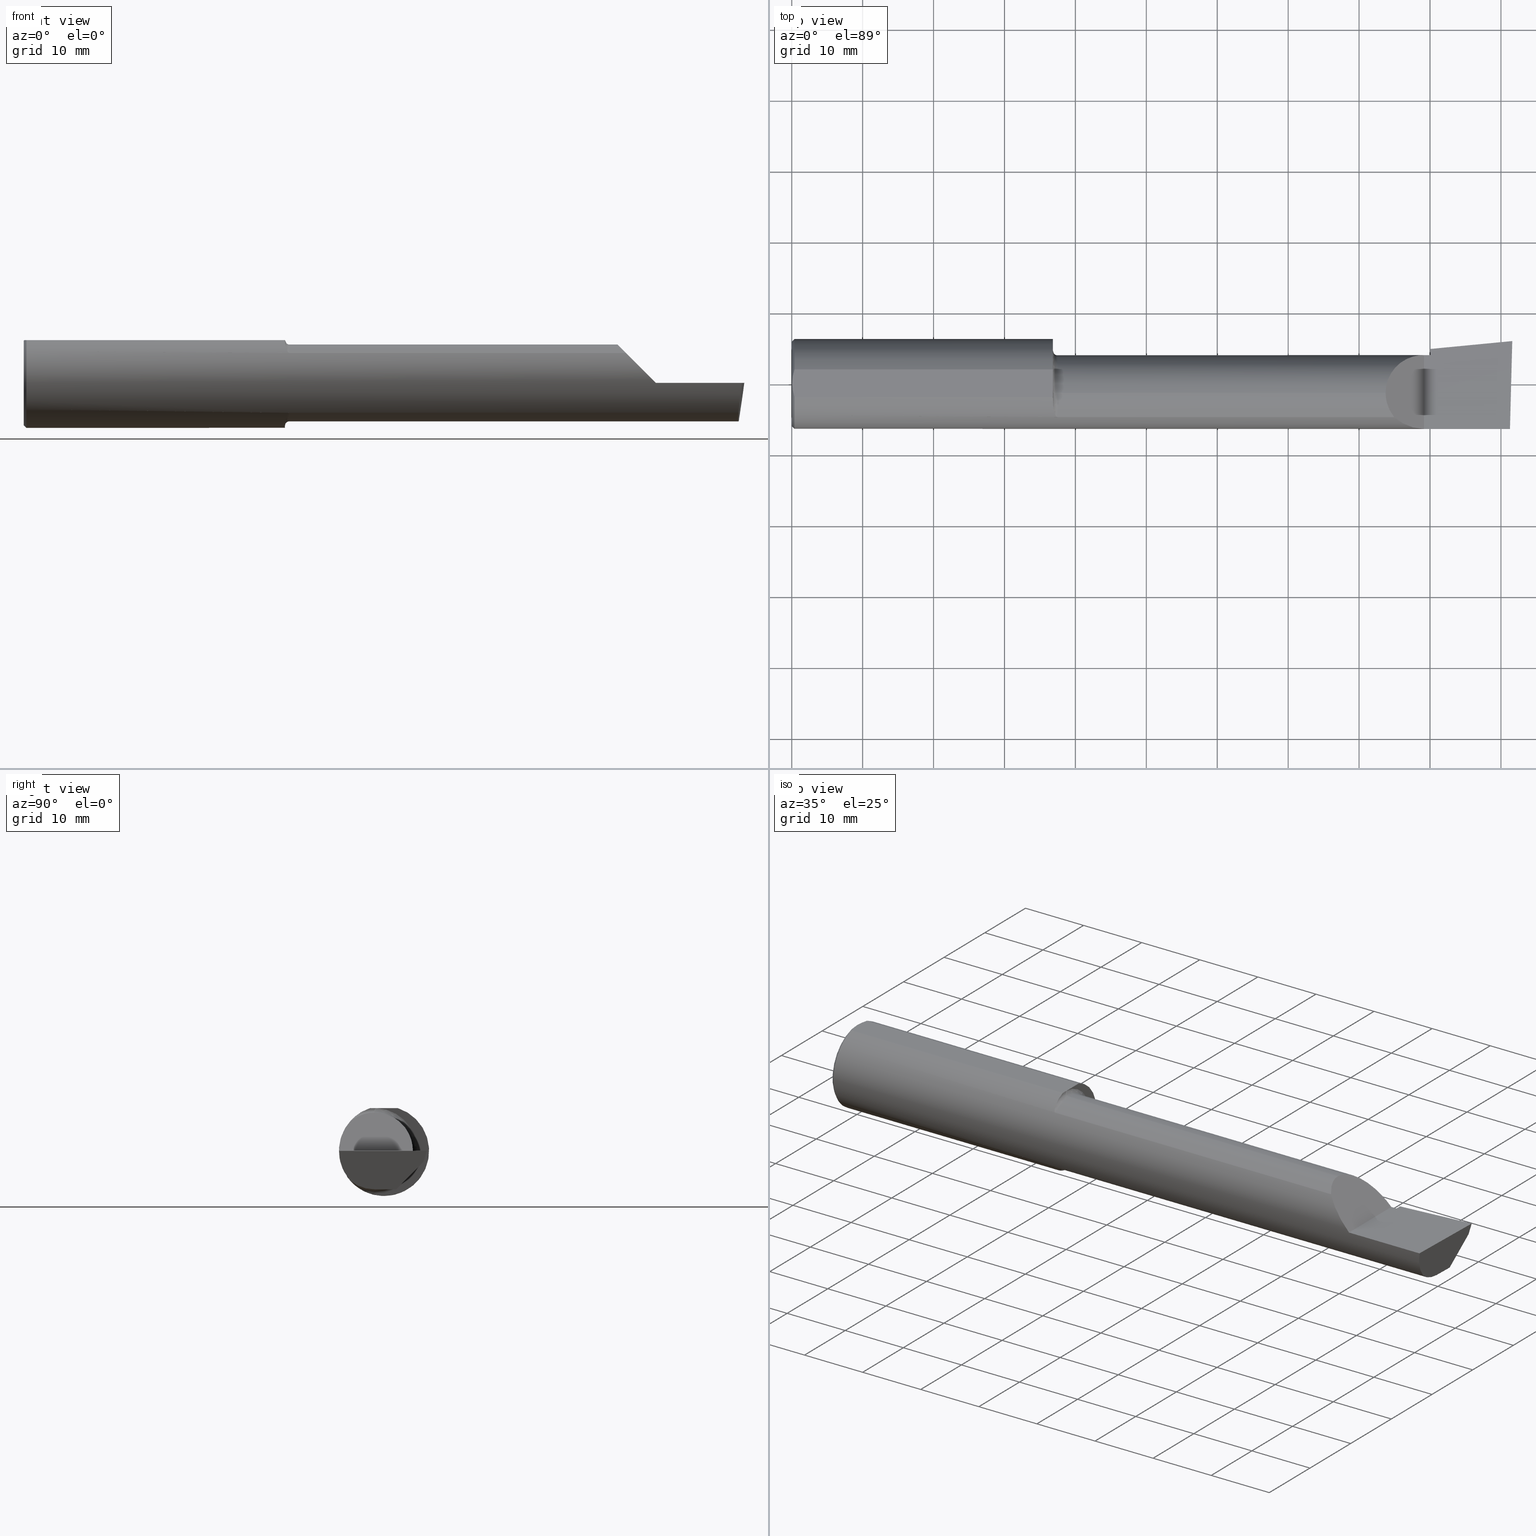
[diagram: canonical four-view strip — front | top / right | iso, engineering-drawing reading convention]
A machine part, canonical four-view strip (front | top / right | iso — engineering-drawing reading convention). The complete STEP part file that produces these views, byte-faithful:
ISO-10303-21;
HEADER;
FILE_DESCRIPTION (( 'STEP AP203' ),
    '1' );
FILE_NAME ('217570-B4902500.STEP',
    '2024-04-26T22:57:09',
    ( '' ),
    ( '' ),
    'SwSTEP 2.0',
    'SolidWorks 2022',
    '' );
FILE_SCHEMA (( 'CONFIG_CONTROL_DESIGN' ));
ENDSEC;

DATA;
#1 = ORIENTED_EDGE ( 'NONE', *, *, #106, .T. ) ;
#2 = CARTESIAN_POINT ( 'NONE',  ( 3.344079160038590626, -0.1868028301886809628, 0.1659208399614071627 ) ) ;
#3 = ORIENTED_EDGE ( 'NONE', *, *, #106, .F. ) ;
#4 =( BOUNDED_CURVE ( )  B_SPLINE_CURVE ( 3, ( #99, #786, #346, #44 ),
 .UNSPECIFIED., .F., .T. ) 
 B_SPLINE_CURVE_WITH_KNOTS ( ( 4, 4 ),
 ( 4.712388980384687898, 5.438654041019562513 ),
 .UNSPECIFIED. ) 
 CURVE ( )  GEOMETRIC_REPRESENTATION_ITEM ( )  RATIONAL_B_SPLINE_CURVE ( ( 1.000000000000000000, 0.9565258159411005323, 0.9565258159411005323, 1.000000000000000000 ) ) 
 REPRESENTATION_ITEM ( '' )  );
#5 = AXIS2_PLACEMENT_3D ( 'NONE', #690, #260, #237 ) ;
#6 = DIRECTION ( 'NONE',  ( 1.000000000000000000, 0.000000000000000000, 0.000000000000000000 ) ) ;
#7 = EDGE_CURVE ( 'NONE', #620, #170, #791, .T. ) ;
#8 = DIRECTION ( 'NONE',  ( 0.000000000000000000, 0.2936076258024057917, 0.9559260233253795702 ) ) ;
#9 = CARTESIAN_POINT ( 'NONE',  ( 3.532795049205047722, 0.1343794326159069574, -0.1015966078791044752 ) ) ;
#10 = ORIENTED_EDGE ( 'NONE', *, *, #475, .T. ) ;
#11 = DIRECTION ( 'NONE',  ( 0.02617694830786373994, 0.9996573249755575929, -3.901665791506495051E-18 ) ) ;
#12 = CARTESIAN_POINT ( 'NONE',  ( 1.450000000000000178, -0.08036415094339748044, -0.2365726648265746579 ) ) ;
#13 = EDGE_CURVE ( 'NONE', #714, #293, #352, .T. ) ;
#14 = LINE ( 'NONE', #18, #100 ) ;
#15 = CC_DESIGN_PERSON_AND_ORGANIZATION_ASSIGNMENT ( #254, #623, ( #421 ) ) ;
#16 = DIRECTION ( 'NONE',  ( -0.000000000000000000, 1.000000000000000000, -0.000000000000000000 ) ) ;
#17 = DIRECTION ( 'NONE',  ( -1.000000000000000000, -0.000000000000000000, -0.000000000000000000 ) ) ;
#18 = CARTESIAN_POINT ( 'NONE',  ( 4.000000000000000000, -0.05299999999999998462, -0.2131499999999999229 ) ) ;
#19 = VECTOR ( 'NONE', #542, 39.37007874015748143 ) ;
#20 = CC_DESIGN_APPROVAL ( #611, ( #190 ) ) ;
#21 = DIRECTION ( 'NONE',  ( -1.000000000000000000, -0.000000000000000000, -0.000000000000000000 ) ) ;
#22 = LINE ( 'NONE', #125, #487 ) ;
#23 = ORIENTED_EDGE ( 'NONE', *, *, #289, .F. ) ;
#24 = PERSON_AND_ORGANIZATION ( #452, #323 ) ;
#25 = LINE ( 'NONE', #640, #185 ) ;
#26 = FACE_OUTER_BOUND ( 'NONE', #126, .T. ) ;
#27 = LINE ( 'NONE', #269, #102 ) ;
#28 = FACE_OUTER_BOUND ( 'NONE', #335, .T. ) ;
#29 = LOCAL_TIME ( 15, 57, 9.000000000000000000, #445 ) ;
#30 = CARTESIAN_POINT ( 'NONE',  ( 3.527186805775590628, 0.1926232675529001570, -6.829619984160658046E-17 ) ) ;
#31 = VERTEX_POINT ( 'NONE', #229 ) ;
#32 = EDGE_CURVE ( 'NONE', #614, #529, #135, .T. ) ;
#33 = DATE_AND_TIME ( #383, #178 ) ;
#34 = CIRCLE ( 'NONE', #133, 0.2498499999999999888 ) ;
#35 = DIRECTION ( 'NONE',  ( 0.000000000000000000, 0.000000000000000000, -1.000000000000000000 ) ) ;
#36 = VECTOR ( 'NONE', #251, 39.37007874015748143 ) ;
#37 = DIRECTION ( 'NONE',  ( 0.09165774897393338949, -0.9519021185660614393, 0.2923717047227301080 ) ) ;
#38 = ADVANCED_FACE ( 'NONE', ( #633 ), #504, .F. ) ;
#39 = CARTESIAN_POINT ( 'NONE',  ( 3.296849999999997394, 0.07186037918017490478, 0.2131499999999999229 ) ) ;
#40 = DIRECTION ( 'NONE',  ( 0.000000000000000000, 0.000000000000000000, 1.000000000000000000 ) ) ;
#41 = LOCAL_TIME ( 15, 57, 9.000000000000000000, #196 ) ;
#42 = VECTOR ( 'NONE', #528, 39.37007874015748143 ) ;
#43 = ORIENTED_EDGE ( 'NONE', *, *, #56, .F. ) ;
#44 = CARTESIAN_POINT ( 'NONE',  ( 3.344079160038590626, -0.1868028301886809628, 0.1659208399614071627 ) ) ;
#45 = ADVANCED_FACE ( 'NONE', ( #447 ), #128, .F. ) ;
#46 = EDGE_LOOP ( 'NONE', ( #10, #456 ) ) ;
#47 = CARTESIAN_POINT ( 'NONE',  ( 1.472243150415551538, -0.1862809296394753733, 0.1665094106511982308 ) ) ;
#48 = CC_DESIGN_PERSON_AND_ORGANIZATION_ASSIGNMENT ( #461, #459, ( #272 ) ) ;
#49 = CARTESIAN_POINT ( 'NONE',  ( 3.991023571893938637, 0.2162715254282662480, -0.06841772571928349256 ) ) ;
#50 = VECTOR ( 'NONE', #787, 39.37007874015748143 ) ;
#51 = CARTESIAN_POINT ( 'NONE',  ( 0.000000000000000000, 0.07650098038587481442, 0.2378500000000000059 ) ) ;
#52 = CARTESIAN_POINT ( 'NONE',  ( 1.473547768521293655, -0.1868028301886799636, -0.1659208399614080232 ) ) ;
#53 = ORIENTED_EDGE ( 'NONE', *, *, #657, .T. ) ;
#54 = ORIENTED_EDGE ( 'NONE', *, *, #375, .F. ) ;
#55 = CIRCLE ( 'NONE', #242, 0.2131499999999997008 ) ;
#56 = EDGE_CURVE ( 'NONE', #667, #368, #304, .T. ) ;
#57 = VERTEX_POINT ( 'NONE', #635 ) ;
#58 = CARTESIAN_POINT ( 'NONE',  ( 1.474999999999999867, -0.05299999999999998462, 0.000000000000000000 ) ) ;
#59 = ORIENTED_EDGE ( 'NONE', *, *, #285, .T. ) ;
#60 = DIRECTION ( 'NONE',  ( 0.000000000000000000, -1.000000000000000000, 1.138839417068643993E-16 ) ) ;
#61 = ORIENTED_EDGE ( 'NONE', *, *, #158, .F. ) ;
#62 = CARTESIAN_POINT ( 'NONE',  ( 3.536975816846328780, 0.1338694103809222047, -0.1025372660271281627 ) ) ;
#63 = AXIS2_PLACEMENT_3D ( 'NONE', #381, #759, #499 ) ;
#64 = ORIENTED_EDGE ( 'NONE', *, *, #598, .T. ) ;
#65 = DIRECTION ( 'NONE',  ( 0.000000000000000000, 1.000000000000000000, -1.707404996040164265E-16 ) ) ;
#66 = ORIENTED_EDGE ( 'NONE', *, *, #727, .T. ) ;
#67 = CARTESIAN_POINT ( 'NONE',  ( 0.01499999999999999771, 0.07650098038587481442, 0.2378500000000000059 ) ) ;
#68 = EDGE_CURVE ( 'NONE', #529, #170, #543, .T. ) ;
#69 = DIRECTION ( 'NONE',  ( -1.000000000000000000, 0.000000000000000000, 1.512967610748942321E-16 ) ) ;
#70 = CARTESIAN_POINT ( 'NONE',  ( 1.474999999999999867, -0.05299999999999996381, -0.2381499999999997508 ) ) ;
#71 = ORIENTED_EDGE ( 'NONE', *, *, #642, .F. ) ;
#72 = ORIENTED_EDGE ( 'NONE', *, *, #68, .F. ) ;
#73 = CONICAL_SURFACE ( 'NONE', #639, 0.2498499999999999888, 0.7853981633974601584 ) ;
#74 = CARTESIAN_POINT ( 'NONE',  ( 3.545000000000000373, 0.1328281892403430364, -0.1044069278527783584 ) ) ;
#75 = EDGE_CURVE ( 'NONE', #614, #156, #511, .T. ) ;
#76 = DIRECTION ( 'NONE',  ( 0.06894566448119619773, -0.7160281025913034503, 0.6946583704589934793 ) ) ;
#77 = CARTESIAN_POINT ( 'NONE',  ( 0.000000000000000000, -0.05299999999999998462, 0.2131499999999999229 ) ) ;
#78 = FACE_OUTER_BOUND ( 'NONE', #674, .T. ) ;
#79 = DIRECTION ( 'NONE',  ( 0.000000000000000000, 0.000000000000000000, 1.000000000000000000 ) ) ;
#80 = CARTESIAN_POINT ( 'NONE',  ( 0.000000000000000000, 0.000000000000000000, -0.2348499999999996424 ) ) ;
#81 = CARTESIAN_POINT ( 'NONE',  ( 0.01499999999999999771, 0.000000000000000000, 0.000000000000000000 ) ) ;
#82 = ADVANCED_FACE ( 'NONE', ( #78 ), #495, .F. ) ;
#83 = APPROVAL_ROLE ( '' ) ;
#84 = AXIS2_PLACEMENT_3D ( 'NONE', #722, #399, #729 ) ;
#85 = CARTESIAN_POINT ( 'NONE',  ( 3.528944985009565993, 0.1743638780700111635, -0.06000000000000001166 ) ) ;
#86 = CARTESIAN_POINT ( 'NONE',  ( 1.450000900032402118, -0.05299999999999998462, 0.2378500000000221548 ) ) ;
#87 = APPROVAL_DATE_TIME ( #209, #611 ) ;
#88 = PLANE ( 'NONE',  #408 ) ;
#89 = FACE_OUTER_BOUND ( 'NONE', #46, .T. ) ;
#90 = VERTEX_POINT ( 'NONE', #702 ) ;
#91 = PERSON_AND_ORGANIZATION_ROLE ( 'design_supplier' ) ;
#92 = VECTOR ( 'NONE', #440, 39.37007874015748143 ) ;
#93 = EDGE_CURVE ( 'NONE', #296, #412, #510, .T. ) ;
#94 = FACE_OUTER_BOUND ( 'NONE', #474, .T. ) ;
#95 = CARTESIAN_POINT ( 'NONE',  ( 0.008199648822848978544, 0.05156445313451100965, 0.2378500000000000059 ) ) ;
#96 = DIRECTION ( 'NONE',  ( -0.02617694830786371912, -0.9996573249755575929, 1.707029659308874488E-16 ) ) ;
#97 = DIRECTION ( 'NONE',  ( -1.000000000000000000, -0.000000000000000000, -0.000000000000000000 ) ) ;
#98 = EDGE_CURVE ( 'NONE', #689, #426, #589, .T. ) ;
#99 = CARTESIAN_POINT ( 'NONE',  ( 3.509999999999999787, -0.2498499999999999610, -6.245698675651499853E-17 ) ) ;
#100 = VECTOR ( 'NONE', #627, 39.37007874015748143 ) ;
#101 = CARTESIAN_POINT ( 'NONE',  ( 1.450000000000000178, 0.1851499999999997315, 0.000000000000000000 ) ) ;
#102 = VECTOR ( 'NONE', #513, 39.37007874015748143 ) ;
#103 = VERTEX_POINT ( 'NONE', #141 ) ;
#104 = FACE_OUTER_BOUND ( 'NONE', #348, .T. ) ;
#105 = EDGE_LOOP ( 'NONE', ( #605, #562, #600, #658, #371 ) ) ;
#106 = EDGE_CURVE ( 'NONE', #365, #603, #560, .T. ) ;
#107 = AXIS2_PLACEMENT_3D ( 'NONE', #255, #441, #438 ) ;
#108 = VERTEX_POINT ( 'NONE', #245 ) ;
#109 = CARTESIAN_POINT ( 'NONE',  ( 1.461285743882608124, -0.1704402150608123057, -0.1827701868778690564 ) ) ;
#110 = ORIENTED_EDGE ( 'NONE', *, *, #270, .F. ) ;
#111 = LINE ( 'NONE', #49, #205 ) ;
#112 = CARTESIAN_POINT ( 'NONE',  ( 1.450332084145230072, -0.1014027185340455883, 0.2286231260779308938 ) ) ;
#113 = ORIENTED_EDGE ( 'NONE', *, *, #527, .F. ) ;
#114 = APPLICATION_CONTEXT ( 'configuration controlled 3d designs of mechanical parts and assemblies' ) ;
#115 = AXIS2_PLACEMENT_3D ( 'NONE', #315, #6, #369 ) ;
#116 = ORIENTED_EDGE ( 'NONE', *, *, #345, .T. ) ;
#117 = CARTESIAN_POINT ( 'NONE',  ( 0.000000000000000000, -0.07650098038587477278, 0.2378500000000000059 ) ) ;
#118 = VERTEX_POINT ( 'NONE', #384 ) ;
#119 = CARTESIAN_POINT ( 'NONE',  ( 1.474999999999999867, -0.1868028301886799636, 0.1659208399614079399 ) ) ;
#120 = ORIENTED_EDGE ( 'NONE', *, *, #13, .F. ) ;
#121 = ORIENTED_EDGE ( 'NONE', *, *, #632, .F. ) ;
#122 = EDGE_CURVE ( 'NONE', #181, #688, #25, .T. ) ;
#123 = LENGTH_MEASURE_WITH_UNIT ( LENGTH_MEASURE( 0.02539999999999999897 ), #134 );
#124 = ORIENTED_EDGE ( 'NONE', *, *, #93, .T. ) ;
#125 = CARTESIAN_POINT ( 'NONE',  ( 0.01499999999999999771, 3.059780027669661931E-17, 0.2498499999999999888 ) ) ;
#126 = EDGE_LOOP ( 'NONE', ( #550, #648, #407, #290, #292, #23, #492, #66, #772, #741, #583, #793, #299 ) ) ;
#127 = EDGE_CURVE ( 'NONE', #57, #688, #376, .T. ) ;
#128 = PLANE ( 'NONE',  #467 ) ;
#129 = DIRECTION ( 'NONE',  ( -1.000000000000000000, -0.000000000000000000, -0.000000000000000000 ) ) ;
#130 = PRODUCT_DEFINITION ( 'UNKNOWN', '', #190, #638 ) ;
#131 = PLANE ( 'NONE',  #387 ) ;
#132 = DIRECTION ( 'NONE',  ( -1.000000000000000000, -0.000000000000000000, -0.000000000000000000 ) ) ;
#133 = AXIS2_PLACEMENT_3D ( 'NONE', #479, #405, #424 ) ;
#134 =( LENGTH_UNIT ( ) NAMED_UNIT ( * ) SI_UNIT ( $, .METRE. ) );
#135 = LINE ( 'NONE', #201, #36 ) ;
#136 = CARTESIAN_POINT ( 'NONE',  ( 3.963949576795522844, -0.1303119248116118289, -0.2149526021148821520 ) ) ;
#137 = CIRCLE ( 'NONE', #775, 0.02499999999999993894 ) ;
#138 = AXIS2_PLACEMENT_3D ( 'NONE', #571, #21, #261 ) ;
#139 =( BOUNDED_CURVE ( )  B_SPLINE_CURVE ( 3, ( #9, #246, #749, #187 ),
 .UNSPECIFIED., .F., .T. ) 
 B_SPLINE_CURVE_WITH_KNOTS ( ( 4, 4 ),
 ( 0.4968328636548220434, 1.034445644973937206 ),
 .UNSPECIFIED. ) 
 CURVE ( )  GEOMETRIC_REPRESENTATION_ITEM ( )  RATIONAL_B_SPLINE_CURVE ( ( 1.000000000000000000, 0.9760590552538852549, 0.9760590552538852549, 1.000000000000000000 ) ) 
 REPRESENTATION_ITEM ( '' )  );
#140 = UNCERTAINTY_MEASURE_WITH_UNIT (LENGTH_MEASURE( 1.000000000000000082E-05 ), #244, 'distance_accuracy_value', 'NONE');
#141 = CARTESIAN_POINT ( 'NONE',  ( 3.966195468375008470, -0.05299999999999998462, -0.2131499999999999229 ) ) ;
#142 = LINE ( 'NONE', #505, #413 ) ;
#143 = APPROVAL_STATUS ( 'not_yet_approved' ) ;
#144 = AXIS2_PLACEMENT_3D ( 'NONE', #70, #380, #195 ) ;
#145 = DIRECTION ( 'NONE',  ( -0.09584575252021046432, 0.9953961983671800740, 0.000000000000000000 ) ) ;
#146 = CARTESIAN_POINT ( 'NONE',  ( 3.987226101480002782, -0.2496655036952227513, -1.346597502108382612E-16 ) ) ;
#147 = ADVANCED_FACE ( 'NONE', ( #708 ), #628, .F. ) ;
#148 = SHAPE_DEFINITION_REPRESENTATION ( #677, #747 ) ;
#149 = CARTESIAN_POINT ( 'NONE',  ( 3.528944985009565993, 0.1743638780700111635, -0.06000000000000001166 ) ) ;
#150 = ORIENTED_EDGE ( 'NONE', *, *, #398, .F. ) ;
#151 = EDGE_CURVE ( 'NONE', #243, #181, #309, .T. ) ;
#152 = PLANE ( 'NONE',  #488 ) ;
#153 = DIRECTION ( 'NONE',  ( 0.000000000000000000, 0.000000000000000000, 1.000000000000000000 ) ) ;
#154 = CIRCLE ( 'NONE', #608, 0.2381499999999997230 ) ;
#155 = CARTESIAN_POINT ( 'NONE',  ( 0.003000000000000063380, 0.01299872814765622858, 0.2378499999999999226 ) ) ;
#156 = VERTEX_POINT ( 'NONE', #186 ) ;
#157 = CARTESIAN_POINT ( 'NONE',  ( 3.544999999999999929, -0.05299999999999998462, -0.2131499999999999229 ) ) ;
#158 = EDGE_CURVE ( 'NONE', #680, #156, #433, .T. ) ;
#159 = AXIS2_PLACEMENT_3D ( 'NONE', #508, #197, #451 ) ;
#160 = DIRECTION ( 'NONE',  ( 0.000000000000000000, 0.000000000000000000, 1.000000000000000000 ) ) ;
#161 = CARTESIAN_POINT ( 'NONE',  ( 3.296849999999997394, -0.05299999999999998462, 0.2131499999999999229 ) ) ;
#162 = VECTOR ( 'NONE', #768, 39.37007874015748143 ) ;
#163 = CARTESIAN_POINT ( 'NONE',  ( 3.528944985009565993, 0.1743638780700111635, -0.06000000000000001166 ) ) ;
#164 = CARTESIAN_POINT ( 'NONE',  ( 1.450000900032402118, -0.05299999999999998462, 0.2378500000000221548 ) ) ;
#165 = ORIENTED_EDGE ( 'NONE', *, *, #122, .F. ) ;
#166 = ADVANCED_FACE ( 'NONE', ( #696 ), #131, .T. ) ;
#167 = AXIS2_PLACEMENT_3D ( 'NONE', #465, #723, #390 ) ;
#168 = ORIENTED_EDGE ( 'NONE', *, *, #642, .T. ) ;
#169 = CARTESIAN_POINT ( 'NONE',  ( 1.465875558094660080, -0.1799506819598046259, -0.1733486322212174358 ) ) ;
#170 = VERTEX_POINT ( 'NONE', #524 ) ;
#171 = CARTESIAN_POINT ( 'NONE',  ( 1.450000000000000178, -0.04503596074371483265, 0.2378500000000000059 ) ) ;
#172 = LINE ( 'NONE', #349, #559 ) ;
#173 = ORIENTED_EDGE ( 'NONE', *, *, #694, .T. ) ;
#174 = EDGE_LOOP ( 'NONE', ( #602, #544, #427 ) ) ;
#175 = CC_DESIGN_PERSON_AND_ORGANIZATION_ASSIGNMENT ( #24, #91, ( #190 ) ) ;
#176 = ADVANCED_FACE ( 'NONE', ( #579 ), #776, .F. ) ;
#177 = EDGE_LOOP ( 'NONE', ( #180, #64, #525, #416 ) ) ;
#178 = LOCAL_TIME ( 15, 57, 9.000000000000000000, #643 ) ;
#179 = VECTOR ( 'NONE', #777, 39.37007874015748854 ) ;
#180 = ORIENTED_EDGE ( 'NONE', *, *, #122, .T. ) ;
#181 = VERTEX_POINT ( 'NONE', #517 ) ;
#182 = DIRECTION ( 'NONE',  ( 0.000000000000000000, 0.000000000000000000, 1.000000000000000000 ) ) ;
#183 = ADVANCED_FACE ( 'NONE', ( #94 ), #754, .T. ) ;
#184 = ORIENTED_EDGE ( 'NONE', *, *, #727, .F. ) ;
#185 = VECTOR ( 'NONE', #326, 39.37007874015748143 ) ;
#186 = CARTESIAN_POINT ( 'NONE',  ( 3.969369008890590855, 0.06819262280682616972, -0.2131499999999999506 ) ) ;
#187 = CARTESIAN_POINT ( 'NONE',  ( 3.540349815208491790, 0.05592018782259830512, -0.1832193089843147382 ) ) ;
#188 = LINE ( 'NONE', #117, #92 ) ;
#189 = DIRECTION ( 'NONE',  ( -0.1053106618241661518, -0.6976485211320174740, -0.7086580314005233028 ) ) ;
#190 = PRODUCT_DEFINITION_FORMATION_WITH_SPECIFIED_SOURCE ( 'ANY', '', #421, .NOT_KNOWN. ) ;
#191 = CARTESIAN_POINT ( 'NONE',  ( 7.089685198749692867E-32, -0.2498499999999999610, 4.685946446163635703E-16 ) ) ;
#192 = ADVANCED_FACE ( 'NONE', ( #28 ), #271, .T. ) ;
#193 =( BOUNDED_CURVE ( )  B_SPLINE_CURVE ( 3, ( #161, #39, #477, #401 ),
 .UNSPECIFIED., .F., .T. ) 
 B_SPLINE_CURVE_WITH_KNOTS ( ( 4, 4 ),
 ( 0.000000000000000000, 1.570796326794898112 ),
 .UNSPECIFIED. ) 
 CURVE ( )  GEOMETRIC_REPRESENTATION_ITEM ( )  RATIONAL_B_SPLINE_CURVE ( ( 1.000000000000000000, 0.8047378541243646044, 0.8047378541243646044, 1.000000000000000000 ) ) 
 REPRESENTATION_ITEM ( '' )  );
#194 = CARTESIAN_POINT ( 'NONE',  ( 3.541916792879878262, 0.05627666367902792871, -0.1830073912696822680 ) ) ;
#195 = DIRECTION ( 'NONE',  ( 0.000000000000000000, 0.000000000000000000, 1.000000000000000000 ) ) ;
#196 = COORDINATED_UNIVERSAL_TIME_OFFSET ( 8, 0, .BEHIND. ) ;
#197 = DIRECTION ( 'NONE',  ( -1.000000000000000000, -0.000000000000000000, -0.000000000000000000 ) ) ;
#198 = CARTESIAN_POINT ( 'NONE',  ( 3.544999999999999929, 0.05698775240724700958, -0.1825804393148460492 ) ) ;
#199 = VERTEX_POINT ( 'NONE', #206 ) ;
#200 = CARTESIAN_POINT ( 'NONE',  ( 1.450000000000000178, -0.08036415094339748044, 0.2365726648265746579 ) ) ;
#201 = CARTESIAN_POINT ( 'NONE',  ( 3.544999999999999929, 0.2148312740513258212, -0.01988118725737611503 ) ) ;
#202 = CARTESIAN_POINT ( 'NONE',  ( 0.01499999999999999771, 0.000000000000000000, -0.2498499999999999888 ) ) ;
#203 = EDGE_CURVE ( 'NONE', #684, #90, #314, .T. ) ;
#204 = DATE_AND_TIME ( #264, #41 ) ;
#205 = VECTOR ( 'NONE', #471, 39.37007874015748854 ) ;
#206 = CARTESIAN_POINT ( 'NONE',  ( 1.474999999999999867, -0.05299999999999998462, 0.2131499999999997008 ) ) ;
#207 = ORIENTED_EDGE ( 'NONE', *, *, #710, .F. ) ;
#208 = EDGE_CURVE ( 'NONE', #31, #426, #713, .T. ) ;
#209 = DATE_AND_TIME ( #581, #258 ) ;
#210 = APPROVAL ( #143, 'UNSPECIFIED' ) ;
#211 = CARTESIAN_POINT ( 'NONE',  ( 0.01499999999998191669, -0.07650098038590480432, 0.2378500000000000059 ) ) ;
#212 = PERSON_AND_ORGANIZATION_ROLE ( 'creator' ) ;
#213 = CARTESIAN_POINT ( 'NONE',  ( 0.008160184410935175658, -0.05138200716576606791, 0.2378500000000000336 ) ) ;
#214 = CARTESIAN_POINT ( 'NONE',  ( 3.973097331270538213, -0.2278791102234775934, -0.1196748990301323839 ) ) ;
#215 = CIRCLE ( 'NONE', #144, 0.02499999999999993894 ) ;
#216 = EDGE_CURVE ( 'NONE', #243, #680, #647, .T. ) ;
#217 = CARTESIAN_POINT ( 'NONE',  ( 0.004068542164723859197, -0.02585015905295368760, 0.2378499999999999226 ) ) ;
#218 = DIRECTION ( 'NONE',  ( 0.000000000000000000, 0.000000000000000000, -1.000000000000000000 ) ) ;
#219 = CARTESIAN_POINT ( 'NONE',  ( 0.003000000000000035624, 4.000210840755228160E-17, 0.2378500000000000059 ) ) ;
#220 = ORIENTED_EDGE ( 'NONE', *, *, #704, .F. ) ;
#221 = CARTESIAN_POINT ( 'NONE',  ( 0.000000000000000000, 0.000000000000000000, 0.000000000000000000 ) ) ;
#222 = ADVANCED_FACE ( 'NONE', ( #89 ), #152, .F. ) ;
#223 = AXIS2_PLACEMENT_3D ( 'NONE', #656, #767, #771 ) ;
#224 = ORIENTED_EDGE ( 'NONE', *, *, #773, .F. ) ;
#225 = CARTESIAN_POINT ( 'NONE',  ( 1.470138573936400128, -0.1849738682364335252, -0.1679602226613246818 ) ) ;
#226 = EDGE_CURVE ( 'NONE', #31, #103, #720, .T. ) ;
#227 = ORIENTED_EDGE ( 'NONE', *, *, #216, .T. ) ;
#228 = CARTESIAN_POINT ( 'NONE',  ( 3.544999999999999929, 0.1601500000000001256, 4.685946446163641620E-16 ) ) ;
#229 = CARTESIAN_POINT ( 'NONE',  ( 3.968492717492761113, -0.1868028301886796583, -0.1659208399614084672 ) ) ;
#230 = CARTESIAN_POINT ( 'NONE',  ( 1.467018584423772198, -0.1817363555988622537, 0.1714722504633796052 ) ) ;
#231 = VERTEX_POINT ( 'NONE', #392 ) ;
#232 = CARTESIAN_POINT ( 'NONE',  ( 1.450001800035618071, -0.04901601311796584953, 0.2378500024320483464 ) ) ;
#233 = APPLICATION_CONTEXT ( 'configuration controlled 3d designs of mechanical parts and assemblies' ) ;
#234 = ORIENTED_EDGE ( 'NONE', *, *, #32, .F. ) ;
#235 = LINE ( 'NONE', #681, #541 ) ;
#236 = VERTEX_POINT ( 'NONE', #337 ) ;
#237 = DIRECTION ( 'NONE',  ( -0.7071067811865511255, 0.000000000000000000, 0.7071067811865439090 ) ) ;
#238 = EDGE_CURVE ( 'NONE', #156, #103, #396, .T. ) ;
#239 = VECTOR ( 'NONE', #8, 39.37007874015748854 ) ;
#240 = ORIENTED_EDGE ( 'NONE', *, *, #93, .F. ) ;
#241 = CARTESIAN_POINT ( 'NONE',  ( 3.296849999999996061, -0.1021668565906577175, 0.2131499999999998951 ) ) ;
#242 = AXIS2_PLACEMENT_3D ( 'NONE', #58, #298, #409 ) ;
#243 = VERTEX_POINT ( 'NONE', #721 ) ;
#244 =( CONVERSION_BASED_UNIT ( 'INCH', #123 ) LENGTH_UNIT ( ) NAMED_UNIT ( #551 ) );
#245 = CARTESIAN_POINT ( 'NONE',  ( 0.000000000000000000, 2.967931517733664878E-17, 0.2348499999999996424 ) ) ;
#246 = CARTESIAN_POINT ( 'NONE',  ( 3.534569588231498471, 0.1159501401920711161, -0.1355866241796522820 ) ) ;
#247 = ORIENTED_EDGE ( 'NONE', *, *, #489, .F. ) ;
#248 = VECTOR ( 'NONE', #439, 39.37007874015748143 ) ;
#249 = VERTEX_POINT ( 'NONE', #157 ) ;
#250 = AXIS2_PLACEMENT_3D ( 'NONE', #136, #566, #428 ) ;
#251 = DIRECTION ( 'NONE',  ( 0.000000000000000000, 0.6963153109074925462, 0.7177360153954948085 ) ) ;
#252 = CARTESIAN_POINT ( 'NONE',  ( 3.968492717492761113, -0.1868028301886796583, -0.1659208399614084672 ) ) ;
#253 = ADVANCED_FACE ( 'NONE', ( #462 ), #592, .T. ) ;
#254 = PERSON_AND_ORGANIZATION ( #452, #323 ) ;
#255 = CARTESIAN_POINT ( 'NONE',  ( 4.000000000000000000, -0.05299999999999998462, -0.2131499999999999229 ) ) ;
#256 = CARTESIAN_POINT ( 'NONE',  ( 0.000000000000000000, 0.000000000000000000, 0.000000000000000000 ) ) ;
#257 = AXIS2_PLACEMENT_3D ( 'NONE', #310, #327, #182 ) ;
#258 = LOCAL_TIME ( 15, 57, 9.000000000000000000, #649 ) ;
#259 = VECTOR ( 'NONE', #96, 39.37007874015748854 ) ;
#260 = DIRECTION ( 'NONE',  ( -0.7071067811865439090, 0.000000000000000000, -0.7071067811865511255 ) ) ;
#261 = DIRECTION ( 'NONE',  ( 0.000000000000000000, 0.000000000000000000, 1.000000000000000000 ) ) ;
#262 = DIRECTION ( 'NONE',  ( 1.000000000000000000, 0.000000000000000000, 0.000000000000000000 ) ) ;
#263 = ORIENTED_EDGE ( 'NONE', *, *, #329, .T. ) ;
#264 = CALENDAR_DATE ( 2024, 26, 4 ) ;
#265 = ADVANCED_FACE ( 'NONE', ( #284 ), #277, .F. ) ;
#266 = CARTESIAN_POINT ( 'NONE',  ( 3.540349815208491790, 0.05592018782259830512, -0.1832193089843147382 ) ) ;
#267 = DIRECTION ( 'NONE',  ( 0.000000000000000000, -1.000000000000000000, 0.000000000000000000 ) ) ;
#268 = ORIENTED_EDGE ( 'NONE', *, *, #238, .T. ) ;
#269 = CARTESIAN_POINT ( 'NONE',  ( 7.089685198749692867E-32, 0.1601499999999999035, 4.685946446163635703E-16 ) ) ;
#270 = EDGE_CURVE ( 'NONE', #90, #714, #494, .T. ) ;
#271 = PLANE ( 'NONE',  #223 ) ;
#272 = SECURITY_CLASSIFICATION ( '', '', #770 ) ;
#273 = PRODUCT_RELATED_PRODUCT_CATEGORY ( 'detail', '', ( #421 ) ) ;
#274 = CARTESIAN_POINT ( 'NONE',  ( 0.01499999999999999771, 0.000000000000000000, 0.000000000000000000 ) ) ;
#275 = ORIENTED_EDGE ( 'NONE', *, *, #208, .T. ) ;
#276 = PERSON_AND_ORGANIZATION ( #452, #323 ) ;
#277 = TOROIDAL_SURFACE ( 'NONE', #167, 0.2381499999999997508, 0.02499999999999995628 ) ;
#278 = DIRECTION ( 'NONE',  ( 1.000000000000000000, 0.000000000000000000, 0.000000000000000000 ) ) ;
#279 = ADVANCED_FACE ( 'NONE', ( #644 ), #88, .T. ) ;
#280 = COORDINATED_UNIVERSAL_TIME_OFFSET ( 8, 0, .BEHIND. ) ;
#281 = CARTESIAN_POINT ( 'NONE',  ( 0.003000000000000035624, 4.000210840755228160E-17, 0.2378500000000000059 ) ) ;
#282 = PLANE ( 'NONE',  #719 ) ;
#283 = CIRCLE ( 'NONE', #386, 0.2498499999999999888 ) ;
#284 = FACE_OUTER_BOUND ( 'NONE', #730, .T. ) ;
#285 = EDGE_CURVE ( 'NONE', #603, #667, #27, .T. ) ;
#286 = ORIENTED_EDGE ( 'NONE', *, *, #127, .T. ) ;
#287 = CARTESIAN_POINT ( 'NONE',  ( 3.313215146136122335, -0.1485302233682073147, 0.1967848538638751199 ) ) ;
#288 = CARTESIAN_POINT ( 'NONE',  ( 1.450000000000000178, -0.08036415094339748044, 0.2365726648265746579 ) ) ;
#289 = EDGE_CURVE ( 'NONE', #686, #469, #616, .T. ) ;
#290 = ORIENTED_EDGE ( 'NONE', *, *, #704, .T. ) ;
#291 = CARTESIAN_POINT ( 'NONE',  ( 1.472232603162240583, -0.1862758070845880742, -0.1665151405181419242 ) ) ;
#292 = ORIENTED_EDGE ( 'NONE', *, *, #436, .F. ) ;
#293 = VERTEX_POINT ( 'NONE', #366 ) ;
#294 = DIRECTION ( 'NONE',  ( 0.000000000000000000, 0.000000000000000000, 1.000000000000000000 ) ) ;
#295 = AXIS2_PLACEMENT_3D ( 'NONE', #256, #132, #745 ) ;
#296 = VERTEX_POINT ( 'NONE', #619 ) ;
#297 = ORIENTED_EDGE ( 'NONE', *, *, #226, .F. ) ;
#298 = DIRECTION ( 'NONE',  ( -1.000000000000000000, -0.000000000000000000, -0.000000000000000000 ) ) ;
#299 = ORIENTED_EDGE ( 'NONE', *, *, #400, .F. ) ;
#300 = DIRECTION ( 'NONE',  ( -1.000000000000000000, -0.000000000000000000, -0.000000000000000000 ) ) ;
#301 = ORIENTED_EDGE ( 'NONE', *, *, #7, .T. ) ;
#302 = EDGE_CURVE ( 'NONE', #236, #684, #34, .T. ) ;
#303 =( BOUNDED_CURVE ( )  B_SPLINE_CURVE ( 3, ( #252, #214, #397, #651 ),
 .UNSPECIFIED., .F., .F. ) 
 B_SPLINE_CURVE_WITH_KNOTS ( ( 4, 4 ),
 ( 0.6344818218799027632, 1.360746882514782818 ),
 .UNSPECIFIED. ) 
 CURVE ( )  GEOMETRIC_REPRESENTATION_ITEM ( )  RATIONAL_B_SPLINE_CURVE ( ( 1.000000000000000000, 0.9565258159410998662, 0.9565258159410998662, 1.000000000000000000 ) ) 
 REPRESENTATION_ITEM ( '' )  );
#304 = CIRCLE ( 'NONE', #63, 0.2131500000000001172 ) ;
#305 = ORIENTED_EDGE ( 'NONE', *, *, #127, .F. ) ;
#306 = DIRECTION ( 'NONE',  ( 0.000000000000000000, 0.6963153109074925462, 0.7177360153954948085 ) ) ;
#307 = ORIENTED_EDGE ( 'NONE', *, *, #75, .F. ) ;
#308 = FACE_OUTER_BOUND ( 'NONE', #174, .T. ) ;
#309 = LINE ( 'NONE', #554, #239 ) ;
#310 = CARTESIAN_POINT ( 'NONE',  ( 1.474999999999999867, -0.05299999999999998462, 0.000000000000000000 ) ) ;
#311 = ORIENTED_EDGE ( 'NONE', *, *, #324, .F. ) ;
#312 = CIRCLE ( 'NONE', #742, 0.2381499999999997230 ) ;
#313 = ORIENTED_EDGE ( 'NONE', *, *, #646, .F. ) ;
#314 = B_SPLINE_CURVE_WITH_KNOTS ( 'NONE', 3,
 ( #211, #344, #213, #217, #715, #281 ),
 .UNSPECIFIED., .F., .F.,
 ( 4, 2, 4 ),
 ( 0.002692677063605041030, 0.003672889278957893171, 0.004653101494310745746 ),
 .UNSPECIFIED. ) ;
#315 = CARTESIAN_POINT ( 'NONE',  ( 1.450000000000000178, 0.1851499999999997315, 0.000000000000000000 ) ) ;
#316 = EDGE_CURVE ( 'NONE', #293, #296, #796, .T. ) ;
#317 = CARTESIAN_POINT ( 'NONE',  ( 4.000000000000000000, -0.2500000000000000555, -1.365923996832131609E-16 ) ) ;
#318 = CARTESIAN_POINT ( 'NONE',  ( 3.988156289907357266, 0.07000163221415005299, -0.2131499999999999506 ) ) ;
#319 = CARTESIAN_POINT ( 'NONE',  ( 1.457341173198633433, -0.1582250006961565814, -0.1936724403215120405 ) ) ;
#320 = DIRECTION ( 'NONE',  ( -1.000000000000000000, -0.000000000000000000, -0.000000000000000000 ) ) ;
#321 = DIRECTION ( 'NONE',  ( 0.000000000000000000, -0.6963153109074925462, -0.7177360153954948085 ) ) ;
#322 = DIRECTION ( 'NONE',  ( 0.000000000000000000, 0.000000000000000000, 1.000000000000000000 ) ) ;
#323 = ORGANIZATION ( 'UNSPECIFIED', 'UNSPECIFIED', '' ) ;
#324 = EDGE_CURVE ( 'NONE', #249, #614, #235, .T. ) ;
#325 = DATE_TIME_ROLE ( 'classification_date' ) ;
#326 = DIRECTION ( 'NONE',  ( 0.9953961983671787417, 0.09584575252022452252, -1.506002207992170530E-16 ) ) ;
#327 = DIRECTION ( 'NONE',  ( -1.000000000000000000, -0.000000000000000000, -0.000000000000000000 ) ) ;
#328 = ORIENTED_EDGE ( 'NONE', *, *, #646, .T. ) ;
#329 = EDGE_CURVE ( 'NONE', #368, #243, #172, .T. ) ;
#330 = CARTESIAN_POINT ( 'NONE',  ( 0.01499999999999999771, 0.07650098038587481442, 0.2378500000000000059 ) ) ;
#331 = DIRECTION ( 'NONE',  ( -1.000000000000000000, 0.000000000000000000, -0.000000000000000000 ) ) ;
#332 = CLOSED_SHELL ( 'NONE', ( #253, #351, #265, #507, #622, #192, #547, #147, #45, #717, #222, #183, #567, #683, #794, #166, #466, #38, #176, #82, #279, #446 ) ) ;
#333 = CALENDAR_DATE ( 2024, 26, 4 ) ;
#334 = CARTESIAN_POINT ( 'NONE',  ( 3.968492717492761113, -0.1868028301886796583, -0.1659208399614084672 ) ) ;
#335 = EDGE_LOOP ( 'NONE', ( #234, #311, #71 ) ) ;
#336 = PERSON_AND_ORGANIZATION ( #452, #323 ) ;
#337 = CARTESIAN_POINT ( 'NONE',  ( 0.01499999999999999771, 0.000000000000000000, -0.2498499999999999888 ) ) ;
#338 = ORIENTED_EDGE ( 'NONE', *, *, #518, .T. ) ;
#339 = VECTOR ( 'NONE', #666, 39.37007874015748143 ) ;
#340 = CARTESIAN_POINT ( 'NONE',  ( 0.000000000000000000, 0.000000000000000000, 0.000000000000000000 ) ) ;
#341 = CIRCLE ( 'NONE', #295, 0.2348499999999996424 ) ;
#342 = MANIFOLD_SOLID_BREP ( 'Extrude7', #332 ) ;
#343 = CARTESIAN_POINT ( 'NONE',  ( 3.544999999999999929, -0.2500000000000000555, -6.775237339413629936E-17 ) ) ;
#344 = CARTESIAN_POINT ( 'NONE',  ( 0.01120982745448978989, -0.06412238594540857484, 0.2378500000000000336 ) ) ;
#345 = EDGE_CURVE ( 'NONE', #448, #118, #664, .T. ) ;
#346 = CARTESIAN_POINT ( 'NONE',  ( 3.390325100969867389, -0.2278791102234781485, 0.1196748990301310239 ) ) ;
#347 = VECTOR ( 'NONE', #320, 39.37007874015748143 ) ;
#348 = EDGE_LOOP ( 'NONE', ( #116, #545, #121, #665 ) ) ;
#349 = CARTESIAN_POINT ( 'NONE',  ( 3.544999999999999929, 0.2148312740513258212, -0.01988118725737611503 ) ) ;
#350 = FACE_OUTER_BOUND ( 'NONE', #789, .T. ) ;
#351 = ADVANCED_FACE ( 'NONE', ( #104 ), #491, .T. ) ;
#352 = LINE ( 'NONE', #51, #50 ) ;
#353 = CARTESIAN_POINT ( 'NONE',  ( 1.450001800093990489, -0.05698398688203849122, 0.2378499975680403167 ) ) ;
#354 = ORIENTED_EDGE ( 'NONE', *, *, #7, .F. ) ;
#355 = ORIENTED_EDGE ( 'NONE', *, *, #68, .T. ) ;
#356 = CARTESIAN_POINT ( 'NONE',  ( 3.545000000000000373, 0.1328281892403430364, -0.1044069278527783584 ) ) ;
#357 = ORIENTED_EDGE ( 'NONE', *, *, #662, .F. ) ;
#358 = LINE ( 'NONE', #343, #19 ) ;
#359 = CIRCLE ( 'NONE', #393, 0.2131500000000001172 ) ;
#360 = B_SPLINE_CURVE_WITH_KNOTS ( 'NONE', 3,
 ( #795, #171, #232, #738 ),
 .UNSPECIFIED., .F., .F.,
 ( 4, 4 ),
 ( 0.000000000000000000, 0.4999999999997267186 ),
 .UNSPECIFIED. ) ;
#361 = ORIENTED_EDGE ( 'NONE', *, *, #75, .T. ) ;
#362 = CARTESIAN_POINT ( 'NONE',  ( 1.461268146151109448, -0.1703904609315286256, 0.1828159088808239408 ) ) ;
#363 = ORIENTED_EDGE ( 'NONE', *, *, #657, .F. ) ;
#364 = DIRECTION ( 'NONE',  ( 0.000000000000000000, 0.000000000000000000, -1.000000000000000000 ) ) ;
#365 = VERTEX_POINT ( 'NONE', #394 ) ;
#366 = CARTESIAN_POINT ( 'NONE',  ( 1.450000000000000178, 0.07650098038587482829, 0.2378500000000000059 ) ) ;
#367 = ORIENTED_EDGE ( 'NONE', *, *, #203, .F. ) ;
#368 = VERTEX_POINT ( 'NONE', #356 ) ;
#369 = DIRECTION ( 'NONE',  ( 0.000000000000000000, 0.000000000000000000, -1.000000000000000000 ) ) ;
#370 = VECTOR ( 'NONE', #538, 39.37007874015748854 ) ;
#371 = ORIENTED_EDGE ( 'NONE', *, *, #632, .T. ) ;
#372 = FACE_OUTER_BOUND ( 'NONE', #576, .T. ) ;
#373 = EDGE_LOOP ( 'NONE', ( #797, #43, #53, #676 ) ) ;
#374 = CARTESIAN_POINT ( 'NONE',  ( 1.450000000000000178, -0.06494989539702619719, 0.2378500000000000059 ) ) ;
#375 = EDGE_CURVE ( 'NONE', #249, #689, #785, .T. ) ;
#376 = LINE ( 'NONE', #146, #503 ) ;
#377 = DIRECTION ( 'NONE',  ( 0.000000000000000000, 0.000000000000000000, 1.000000000000000000 ) ) ;
#378 = EDGE_CURVE ( 'NONE', #108, #736, #599, .T. ) ;
#379 = CARTESIAN_POINT ( 'NONE',  ( 3.544999999999999929, 0.1943384830701196664, 0.000000000000000000 ) ) ;
#380 = DIRECTION ( 'NONE',  ( -0.000000000000000000, 1.000000000000000000, 1.224646799147353207E-16 ) ) ;
#381 = CARTESIAN_POINT ( 'NONE',  ( 3.544999999999999929, -0.05299999999999998462, 0.000000000000000000 ) ) ;
#382 = CYLINDRICAL_SURFACE ( 'NONE', #709, 0.2131499999999999229 ) ;
#383 = CALENDAR_DATE ( 2024, 26, 4 ) ;
#384 = CARTESIAN_POINT ( 'NONE',  ( 3.296849999999997394, -0.05299999999999998462, 0.2131499999999999229 ) ) ;
#385 = CARTESIAN_POINT ( 'NONE',  ( 1.450000000000000178, 0.2998500000000000609, 0.2378499999999999504 ) ) ;
#386 = AXIS2_PLACEMENT_3D ( 'NONE', #746, #685, #364 ) ;
#387 = AXIS2_PLACEMENT_3D ( 'NONE', #379, #331, #460 ) ;
#388 = CALENDAR_DATE ( 2024, 26, 4 ) ;
#389 = CARTESIAN_POINT ( 'NONE',  ( 0.01120763235350239959, 0.06411521680875344187, 0.2378500000000000336 ) ) ;
#390 = DIRECTION ( 'NONE',  ( 0.000000000000000000, 0.000000000000000000, 1.000000000000000000 ) ) ;
#391 = ORIENTED_EDGE ( 'NONE', *, *, #662, .T. ) ;
#392 = CARTESIAN_POINT ( 'NONE',  ( 1.450000000000000178, -0.08036415094339748044, -0.2365726648265746579 ) ) ;
#393 = AXIS2_PLACEMENT_3D ( 'NONE', #733, #781, #294 ) ;
#394 = CARTESIAN_POINT ( 'NONE',  ( 3.509999999999999787, -0.2498499999999999610, -6.245698675651499853E-17 ) ) ;
#395 = CARTESIAN_POINT ( 'NONE',  ( 0.004092330037930641193, 0.02606142970188499164, 0.2378500000000000059 ) ) ;
#396 = LINE ( 'NONE', #586, #259 ) ;
#397 = CARTESIAN_POINT ( 'NONE',  ( 3.979623920331823328, -0.2498500000000000443, -0.06185424669427486838 ) ) ;
#398 = EDGE_CURVE ( 'NONE', #486, #744, #476, .T. ) ;
#399 = DIRECTION ( 'NONE',  ( 1.000000000000000000, 0.000000000000000000, 0.000000000000000000 ) ) ;
#400 = EDGE_CURVE ( 'NONE', #426, #231, #558, .T. ) ;
#401 = CARTESIAN_POINT ( 'NONE',  ( 3.509999999999999787, 0.1601499999999999035, -6.245698675651499853E-17 ) ) ;
#402 = TOROIDAL_SURFACE ( 'NONE', #257, 0.2381499999999997508, 0.02499999999999995628 ) ;
#403 = CC_DESIGN_DATE_AND_TIME_ASSIGNMENT ( #204, #449, ( #130 ) ) ;
#404 = ORIENTED_EDGE ( 'NONE', *, *, #578, .F. ) ;
#405 = DIRECTION ( 'NONE',  ( -1.000000000000000000, -0.000000000000000000, -0.000000000000000000 ) ) ;
#406 = EDGE_LOOP ( 'NONE', ( #173, #621, #124, #328 ) ) ;
#407 = ORIENTED_EDGE ( 'NONE', *, *, #710, .T. ) ;
#408 = AXIS2_PLACEMENT_3D ( 'NONE', #450, #577, #145 ) ;
#409 = DIRECTION ( 'NONE',  ( 0.000000000000000000, 0.000000000000000000, 1.000000000000000000 ) ) ;
#410 = ORIENTED_EDGE ( 'NONE', *, *, #415, .T. ) ;
#411 = CARTESIAN_POINT ( 'NONE',  ( 1.450000000000000178, -0.06494989539702619719, 0.2378500000000000059 ) ) ;
#412 = VERTEX_POINT ( 'NONE', #575 ) ;
#413 = VECTOR ( 'NONE', #262, 39.37007874015748143 ) ;
#414 = CARTESIAN_POINT ( 'NONE',  ( 0.01499999999999999771, 0.000000000000000000, 0.000000000000000000 ) ) ;
#415 = EDGE_CURVE ( 'NONE', #714, #236, #520, .T. ) ;
#416 = ORIENTED_EDGE ( 'NONE', *, *, #151, .T. ) ;
#417 = CARTESIAN_POINT ( 'NONE',  ( 1.470144309637440916, -0.1849788583324338820, 0.1679547276881060425 ) ) ;
#418 = ORIENTED_EDGE ( 'NONE', *, *, #578, .T. ) ;
#419 = ORIENTED_EDGE ( 'NONE', *, *, #226, .T. ) ;
#420 = MECHANICAL_CONTEXT ( 'NONE', #114, 'mechanical' ) ;
#421 = PRODUCT ( '217570-B4902500', '217570-B4902500', '', ( #420 ) ) ;
#422 = AXIS2_PLACEMENT_3D ( 'NONE', #679, #437, #693 ) ;
#423 = ORIENTED_EDGE ( 'NONE', *, *, #430, .T. ) ;
#424 = DIRECTION ( 'NONE',  ( 0.000000000000000000, 0.000000000000000000, 1.000000000000000000 ) ) ;
#425 = ORIENTED_EDGE ( 'NONE', *, *, #669, .T. ) ;
#426 = VERTEX_POINT ( 'NONE', #697 ) ;
#427 = ORIENTED_EDGE ( 'NONE', *, *, #458, .T. ) ;
#428 = DIRECTION ( 'NONE',  ( 0.1219104985252705275, 0.000000000000000000, 0.9925410975618692566 ) ) ;
#429 = ORIENTED_EDGE ( 'NONE', *, *, #598, .F. ) ;
#430 = EDGE_CURVE ( 'NONE', #486, #199, #137, .T. ) ;
#431 = PLANE ( 'NONE',  #5 ) ;
#432 = VECTOR ( 'NONE', #16, 39.37007874015748143 ) ;
#433 = LINE ( 'NONE', #691, #766 ) ;
#434 = CYLINDRICAL_SURFACE ( 'NONE', #661, 0.2498499999999999888 ) ;
#435 = VERTEX_POINT ( 'NONE', #756 ) ;
#436 = EDGE_CURVE ( 'NONE', #469, #448, #142, .T. ) ;
#437 = DIRECTION ( 'NONE',  ( 0.000000000000000000, 0.000000000000000000, 1.000000000000000000 ) ) ;
#438 = DIRECTION ( 'NONE',  ( 0.000000000000000000, -1.000000000000000000, 1.707404996040164512E-16 ) ) ;
#439 = DIRECTION ( 'NONE',  ( 0.000000000000000000, -1.000000000000000000, 1.138839417068643993E-16 ) ) ;
#440 = DIRECTION ( 'NONE',  ( -1.000000000000000000, -0.000000000000000000, -0.000000000000000000 ) ) ;
#441 = DIRECTION ( 'NONE',  ( 9.717439401676380705E-34, 1.707404996040164512E-16, 1.000000000000000000 ) ) ;
#442 = DIRECTION ( 'NONE',  ( -1.000000000000000000, -0.000000000000000000, -0.000000000000000000 ) ) ;
#443 = AXIS2_PLACEMENT_3D ( 'NONE', #530, #300, #153 ) ;
#444 =( BOUNDED_CURVE ( )  B_SPLINE_CURVE ( 3, ( #743, #62, #563, #74 ),
 .UNSPECIFIED., .F., .T. ) 
 B_SPLINE_CURVE_WITH_KNOTS ( ( 4, 4 ),
 ( 2.868174658477177896, 2.883234730632702192 ),
 .UNSPECIFIED. ) 
 CURVE ( )  GEOMETRIC_REPRESENTATION_ITEM ( )  RATIONAL_B_SPLINE_CURVE ( ( 1.000000000000000000, 0.9999810996081960335, 0.9999810996081960335, 1.000000000000000000 ) ) 
 REPRESENTATION_ITEM ( '' )  );
#445 = COORDINATED_UNIVERSAL_TIME_OFFSET ( 8, 0, .BEHIND. ) ;
#446 = ADVANCED_FACE ( 'NONE', ( #751 ), #509, .F. ) ;
#447 = FACE_OUTER_BOUND ( 'NONE', #725, .T. ) ;
#448 = VERTEX_POINT ( 'NONE', #634 ) ;
#449 = DATE_TIME_ROLE ( 'creation_date' ) ;
#450 = CARTESIAN_POINT ( 'NONE',  ( 3.535684672073138302, 0.1043695517189374422, -0.2900000000000000910 ) ) ;
#451 = DIRECTION ( 'NONE',  ( 0.000000000000000000, 0.000000000000000000, 1.000000000000000000 ) ) ;
#452 = PERSON ( 'UNSPECIFIED', 'UNSPECIFIED', 'UNSPECIFIED', ('UNSPECIFIED'), ('UNSPECIFIED'), ('UNSPECIFIED') ) ;
#453 = CIRCLE ( 'NONE', #84, 0.2498499999999999888 ) ;
#454 = PERSON_AND_ORGANIZATION ( #452, #323 ) ;
#455 = DIRECTION ( 'NONE',  ( 0.000000000000000000, -0.2936076258024057917, -0.9559260233253795702 ) ) ;
#456 = ORIENTED_EDGE ( 'NONE', *, *, #378, .T. ) ;
#457 = EDGE_LOOP ( 'NONE', ( #168, #580, #732, #113, #391, #59, #734, #224, #790, #72 ) ) ;
#458 = EDGE_CURVE ( 'NONE', #744, #435, #500, .T. ) ;
#459 = PERSON_AND_ORGANIZATION_ROLE ( 'classification_officer' ) ;
#460 = DIRECTION ( 'NONE',  ( -0.000000000000000000, 0.000000000000000000, 1.000000000000000000 ) ) ;
#461 = PERSON_AND_ORGANIZATION ( #452, #323 ) ;
#462 = FACE_OUTER_BOUND ( 'NONE', #457, .T. ) ;
#463 = CARTESIAN_POINT ( 'NONE',  ( 1.474999999999999867, -0.05299999999999998462, 0.000000000000000000 ) ) ;
#464 = CARTESIAN_POINT ( 'NONE',  ( 0.01499999999998191669, -0.07650098038590480432, 0.2378500000000000059 ) ) ;
#465 = CARTESIAN_POINT ( 'NONE',  ( 1.474999999999999867, -0.05299999999999998462, 0.000000000000000000 ) ) ;
#466 = ADVANCED_FACE ( 'NONE', ( #372 ), #382, .T. ) ;
#467 = AXIS2_PLACEMENT_3D ( 'NONE', #317, #763, #69 ) ;
#468 = CARTESIAN_POINT ( 'NONE',  ( 3.509999999999999787, 0.1601499999999999035, -6.245698675651499853E-17 ) ) ;
#469 = VERTEX_POINT ( 'NONE', #641 ) ;
#470 = DIRECTION ( 'NONE',  ( -1.000000000000000000, -0.000000000000000000, -0.000000000000000000 ) ) ;
#471 = DIRECTION ( 'NONE',  ( -0.1240019227989201528, -0.3022330132596635632, -0.9451342385281334968 ) ) ;
#472 = EDGE_LOOP ( 'NONE', ( #419, #557, #61, #429, #305, #548 ) ) ;
#473 = CARTESIAN_POINT ( 'NONE',  ( 1.469285582744839447, -0.1841881072713814904, -0.1688230283719343860 ) ) ;
#474 = EDGE_LOOP ( 'NONE', ( #247, #540, #418, #653, #532 ) ) ;
#475 = EDGE_CURVE ( 'NONE', #736, #108, #341, .T. ) ;
#476 = B_SPLINE_CURVE_WITH_KNOTS ( 'NONE', 3,
 ( #164, #353, #601, #411 ),
 .UNSPECIFIED., .F., .F.,
 ( 4, 4 ),
 ( 0.4999999999997267186, 1.000000000000000000 ),
 .UNSPECIFIED. ) ;
#477 = CARTESIAN_POINT ( 'NONE',  ( 3.385139620819825446, 0.1601500000000000978, 0.1248603791801745772 ) ) ;
#478 = ORIENTED_EDGE ( 'NONE', *, *, #590, .T. ) ;
#479 = CARTESIAN_POINT ( 'NONE',  ( 0.01499999999999999771, 0.000000000000000000, 0.000000000000000000 ) ) ;
#480 = EDGE_LOOP ( 'NONE', ( #739, #240, #425, #423, #478 ) ) ;
#481 = ORIENTED_EDGE ( 'NONE', *, *, #762, .F. ) ;
#482 = AXIS2_PLACEMENT_3D ( 'NONE', #81, #760, #322 ) ;
#483 = CARTESIAN_POINT ( 'NONE',  ( 1.450000000000000178, -0.05299999999999998462, 0.000000000000000000 ) ) ;
#484 = EDGE_LOOP ( 'NONE', ( #515, #120, #110, #367, #184, #612, #150, #682 ) ) ;
#485 = CARTESIAN_POINT ( 'NONE',  ( 1.474999999999999867, -0.1868028301886799636, -0.1659208399614079676 ) ) ;
#486 = VERTEX_POINT ( 'NONE', #86 ) ;
#487 = VECTOR ( 'NONE', #701, 39.37007874015748143 ) ;
#488 = AXIS2_PLACEMENT_3D ( 'NONE', #340, #278, #522 ) ;
#489 = EDGE_CURVE ( 'NONE', #108, #90, #22, .T. ) ;
#490 = EDGE_LOOP ( 'NONE', ( #361, #268, #618, #497 ) ) ;
#491 = CYLINDRICAL_SURFACE ( 'NONE', #443, 0.2131499999999999229 ) ;
#492 = ORIENTED_EDGE ( 'NONE', *, *, #783, .F. ) ;
#493 =( NAMED_UNIT ( * ) SI_UNIT ( $, .STERADIAN. ) SOLID_ANGLE_UNIT ( ) );
#494 = B_SPLINE_CURVE_WITH_KNOTS ( 'NONE', 3,
 ( #219, #155, #395, #95, #389, #330 ),
 .UNSPECIFIED., .F., .F.,
 ( 4, 2, 4 ),
 ( 0.004653101494310745746, 0.005634627094920350784, 0.006616152695529954955 ),
 .UNSPECIFIED. ) ;
#495 = PLANE ( 'NONE',  #782 ) ;
#496 = CARTESIAN_POINT ( 'NONE',  ( 0.000000000000000000, -0.05299999999999998462, 0.000000000000000000 ) ) ;
#497 = ORIENTED_EDGE ( 'NONE', *, *, #324, .T. ) ;
#498 =( NAMED_UNIT ( * ) PLANE_ANGLE_UNIT ( ) SI_UNIT ( $, .RADIAN. ) );
#499 = DIRECTION ( 'NONE',  ( 0.000000000000000000, 0.000000000000000000, 1.000000000000000000 ) ) ;
#500 = LINE ( 'NONE', #385, #248 ) ;
#501 = APPLICATION_PROTOCOL_DEFINITION ( 'international standard', 'config_control_design', 1994, #233 ) ;
#502 = AXIS2_PLACEMENT_3D ( 'NONE', #523, #97, #593 ) ;
#503 = VECTOR ( 'NONE', #11, 39.37007874015748143 ) ;
#504 = PLANE ( 'NONE',  #107 ) ;
#505 = CARTESIAN_POINT ( 'NONE',  ( 2.510000000000000231, -0.1868028301886796583, 0.1659208399614084672 ) ) ;
#506 = DIRECTION ( 'NONE',  ( 0.000000000000000000, 0.000000000000000000, 1.000000000000000000 ) ) ;
#507 = ADVANCED_FACE ( 'NONE', ( #625 ), #402, .F. ) ;
#508 = CARTESIAN_POINT ( 'NONE',  ( 1.474999999999999867, -0.05299999999999998462, 0.000000000000000000 ) ) ;
#509 = PLANE ( 'NONE',  #250 ) ;
#510 = CIRCLE ( 'NONE', #138, 0.2381499999999997230 ) ;
#511 = LINE ( 'NONE', #318, #564 ) ;
#512 = APPROVAL_STATUS ( 'not_yet_approved' ) ;
#513 = DIRECTION ( 'NONE',  ( 1.000000000000000000, 0.000000000000000000, 0.000000000000000000 ) ) ;
#514 = DIRECTION ( 'NONE',  ( 1.000000000000000000, 0.000000000000000000, 0.000000000000000000 ) ) ;
#515 = ORIENTED_EDGE ( 'NONE', *, *, #316, .F. ) ;
#516 = TOROIDAL_SURFACE ( 'NONE', #502, 0.2381499999999997508, 0.02499999999999995628 ) ;
#517 = CARTESIAN_POINT ( 'NONE',  ( 3.544999999999999929, 0.1943384830701263555, 4.685944709609230764E-16 ) ) ;
#518 = EDGE_CURVE ( 'NONE', #412, #689, #215, .T. ) ;
#519 = APPROVAL_DATE_TIME ( #33, #757 ) ;
#520 = CIRCLE ( 'NONE', #482, 0.2498499999999999888 ) ;
#521 = CC_DESIGN_PERSON_AND_ORGANIZATION_ASSIGNMENT ( #454, #212, ( #190 ) ) ;
#522 = DIRECTION ( 'NONE',  ( 0.000000000000000000, 0.000000000000000000, -1.000000000000000000 ) ) ;
#523 = CARTESIAN_POINT ( 'NONE',  ( 1.474999999999999867, -0.05299999999999998462, 0.000000000000000000 ) ) ;
#524 = CARTESIAN_POINT ( 'NONE',  ( 3.540349815208491790, 0.05592018782259830512, -0.1832193089843147382 ) ) ;
#525 = ORIENTED_EDGE ( 'NONE', *, *, #216, .F. ) ;
#526 = DIRECTION ( 'NONE',  ( 1.000000000000000000, 0.000000000000000000, 0.000000000000000000 ) ) ;
#527 = EDGE_CURVE ( 'NONE', #118, #199, #555, .T. ) ;
#528 = DIRECTION ( 'NONE',  ( -1.000000000000000000, -0.000000000000000000, -0.000000000000000000 ) ) ;
#529 = VERTEX_POINT ( 'NONE', #198 ) ;
#530 = CARTESIAN_POINT ( 'NONE',  ( 0.000000000000000000, -0.05299999999999998462, 0.000000000000000000 ) ) ;
#531 = CARTESIAN_POINT ( 'NONE',  ( 4.000000000000012434, 0.2381500000000410511, 1.299164461486961275E-13 ) ) ;
#532 = ORIENTED_EDGE ( 'NONE', *, *, #203, .T. ) ;
#533 = CARTESIAN_POINT ( 'NONE',  ( 1.473548866468136209, -0.1868028301907327104, 0.1659208399590971772 ) ) ;
#534 = EDGE_CURVE ( 'NONE', #620, #170, #139, .T. ) ;
#535 = ORIENTED_EDGE ( 'NONE', *, *, #489, .T. ) ;
#536 = CC_DESIGN_APPROVAL ( #757, ( #130 ) ) ;
#537 = DIRECTION ( 'NONE',  ( -1.000000000000000000, -0.000000000000000000, -0.000000000000000000 ) ) ;
#538 = DIRECTION ( 'NONE',  ( 0.06658005426110603919, -0.6914603011188221737, -0.7193398003386548556 ) ) ;
#539 = CARTESIAN_POINT ( 'NONE',  ( 1.451680550596499808, -0.1214972057705738795, 0.2186080375779518303 ) ) ;
#540 = ORIENTED_EDGE ( 'NONE', *, *, #475, .F. ) ;
#541 = VECTOR ( 'NONE', #65, 39.37007874015748143 ) ;
#542 = DIRECTION ( 'NONE',  ( 0.000000000000000000, 1.000000000000000000, 0.000000000000000000 ) ) ;
#543 =( BOUNDED_CURVE ( )  B_SPLINE_CURVE ( 3, ( #700, #755, #194, #266 ),
 .UNSPECIFIED., .F., .T. ) 
 B_SPLINE_CURVE_WITH_KNOTS ( ( 4, 4 ),
 ( 3.399950576546886705, 3.405787439796291505 ),
 .UNSPECIFIED. ) 
 CURVE ( )  GEOMETRIC_REPRESENTATION_ITEM ( )  RATIONAL_B_SPLINE_CURVE ( ( 1.000000000000000000, 0.9999971609209656886, 0.9999971609209656886, 1.000000000000000000 ) ) 
 REPRESENTATION_ITEM ( '' )  );
#544 = ORIENTED_EDGE ( 'NONE', *, *, #780, .T. ) ;
#545 = ORIENTED_EDGE ( 'NONE', *, *, #527, .T. ) ;
#546 = DIRECTION ( 'NONE',  ( -1.000000000000000000, -0.000000000000000000, -0.000000000000000000 ) ) ;
#547 = ADVANCED_FACE ( 'NONE', ( #26 ), #434, .T. ) ;
#548 = ORIENTED_EDGE ( 'NONE', *, *, #553, .F. ) ;
#549 = ORIENTED_EDGE ( 'NONE', *, *, #32, .T. ) ;
#550 = ORIENTED_EDGE ( 'NONE', *, *, #208, .F. ) ;
#551 = DIMENSIONAL_EXPONENTS ( 1.000000000000000000, 0.000000000000000000, 0.000000000000000000, 0.000000000000000000, 0.000000000000000000, 0.000000000000000000, 0.000000000000000000 ) ;
#552 = APPROVAL_PERSON_ORGANIZATION ( #711, #757, #83 ) ;
#553 = EDGE_CURVE ( 'NONE', #31, #57, #303, .T. ) ;
#554 = CARTESIAN_POINT ( 'NONE',  ( 3.544999999999999929, 0.1943384830701256338, -1.839460354692844041E-15 ) ) ;
#555 = LINE ( 'NONE', #77, #707 ) ;
#556 = ORIENTED_EDGE ( 'NONE', *, *, #158, .T. ) ;
#557 = ORIENTED_EDGE ( 'NONE', *, *, #238, .F. ) ;
#558 = B_SPLINE_CURVE_WITH_KNOTS ( 'NONE', 3,
 ( #485, #52, #291, #225, #473, #731, #169, #671, #109, #319, #572, #629, #636, #12 ),
 .UNSPECIFIED., .F., .F.,
 ( 4, 2, 2, 2, 2, 2, 4 ),
 ( 1.967619685288262155E-07, 0.0001090840123077892968, 0.0002179712626470497701, 0.0004357457633255818570, 0.0008712947646826478196, 0.001742392767396782347, 0.003484588772825049450 ),
 .UNSPECIFIED. ) ;
#559 = VECTOR ( 'NONE', #306, 39.37007874015748143 ) ;
#560 = LINE ( 'NONE', #565, #432 ) ;
#561 = FACE_OUTER_BOUND ( 'NONE', #105, .T. ) ;
#562 = ORIENTED_EDGE ( 'NONE', *, *, #398, .T. ) ;
#563 = CARTESIAN_POINT ( 'NONE',  ( 3.541044210672214643, 0.1333523194825134983, -0.1034740570574036456 ) ) ;
#564 = VECTOR ( 'NONE', #750, 39.37007874015748854 ) ;
#565 = CARTESIAN_POINT ( 'NONE',  ( 3.509999999999999787, -0.2500000000000000555, -6.245698675651499853E-17 ) ) ;
#566 = DIRECTION ( 'NONE',  ( -0.9922060308645496152, 0.02598182930468400861, 0.1218693434051351526 ) ) ;
#567 = ADVANCED_FACE ( 'NONE', ( #561 ), #516, .F. ) ;
#568 = PLANE ( 'NONE',  #115 ) ;
#569 =( GEOMETRIC_REPRESENTATION_CONTEXT ( 3 ) GLOBAL_UNCERTAINTY_ASSIGNED_CONTEXT ( ( #140 ) ) GLOBAL_UNIT_ASSIGNED_CONTEXT ( ( #244, #498, #493 ) ) REPRESENTATION_CONTEXT ( 'NONE', 'WORKASPACE' ) );
#570 = AXIS2_PLACEMENT_3D ( 'NONE', #748, #574, #624 ) ;
#571 = CARTESIAN_POINT ( 'NONE',  ( 1.450000000000000178, -0.05299999999999998462, 0.000000000000000000 ) ) ;
#572 = CARTESIAN_POINT ( 'NONE',  ( 1.455537042546466875, -0.1495003888704994066, -0.2004994225712669054 ) ) ;
#573 = APPROVAL_PERSON_ORGANIZATION ( #758, #210, #585 ) ;
#574 = DIRECTION ( 'NONE',  ( 0.000000000000000000, -1.138839417068643993E-16, -1.000000000000000000 ) ) ;
#575 = CARTESIAN_POINT ( 'NONE',  ( 1.450000000000000178, -0.05299999999999996381, -0.2381499999999997508 ) ) ;
#576 = EDGE_LOOP ( 'NONE', ( #54, #481, #297, #275, #784 ) ) ;
#577 = DIRECTION ( 'NONE',  ( 0.9953961983671800740, 0.09584575252021046432, -3.362767318382027372E-14 ) ) ;
#578 = EDGE_CURVE ( 'NONE', #736, #236, #587, .T. ) ;
#579 = FACE_OUTER_BOUND ( 'NONE', #177, .T. ) ;
#580 = ORIENTED_EDGE ( 'NONE', *, *, #375, .T. ) ;
#581 = CALENDAR_DATE ( 2024, 26, 4 ) ;
#582 = CARTESIAN_POINT ( 'NONE',  ( 3.965703997523709834, -0.1485302233682061490, -0.1967848538638754530 ) ) ;
#583 = ORIENTED_EDGE ( 'NONE', *, *, #13, .T. ) ;
#584 = AXIS2_PLACEMENT_3D ( 'NONE', #30, #37, #455 ) ;
#585 = APPROVAL_ROLE ( '' ) ;
#586 = CARTESIAN_POINT ( 'NONE',  ( 3.966218632342873196, -0.05211540375603091607, -0.2131499999999999229 ) ) ;
#587 = LINE ( 'NONE', #202, #162 ) ;
#588 = CARTESIAN_POINT ( 'NONE',  ( 0.000000000000000000, -0.05299999999999998462, 0.000000000000000000 ) ) ;
#589 = CIRCLE ( 'NONE', #159, 0.2131499999999997008 ) ;
#590 = EDGE_CURVE ( 'NONE', #199, #689, #678, .T. ) ;
#591 = CARTESIAN_POINT ( 'NONE',  ( 3.532795049205047722, 0.1343794326159069574, -0.1015966078791044752 ) ) ;
#592 = CYLINDRICAL_SURFACE ( 'NONE', #631, 0.2131499999999999229 ) ;
#593 = DIRECTION ( 'NONE',  ( 0.000000000000000000, 0.000000000000000000, 1.000000000000000000 ) ) ;
#594 = AXIS2_PLACEMENT_3D ( 'NONE', #463, #597, #778 ) ;
#595 = EDGE_LOOP ( 'NONE', ( #752, #220, #1, #357 ) ) ;
#596 = CARTESIAN_POINT ( 'NONE',  ( 1.450000000000000178, 0.2998500000000000609, 0.2378499999999999504 ) ) ;
#597 = DIRECTION ( 'NONE',  ( -1.000000000000000000, -0.000000000000000000, -0.000000000000000000 ) ) ;
#598 = EDGE_CURVE ( 'NONE', #688, #680, #111, .T. ) ;
#599 = CIRCLE ( 'NONE', #670, 0.2348499999999996424 ) ;
#600 = ORIENTED_EDGE ( 'NONE', *, *, #780, .F. ) ;
#601 = CARTESIAN_POINT ( 'NONE',  ( 1.450000000000000178, -0.06096394231309017891, 0.2378500000000000059 ) ) ;
#602 = ORIENTED_EDGE ( 'NONE', *, *, #783, .T. ) ;
#603 = VERTEX_POINT ( 'NONE', #468 ) ;
#604 = DIRECTION ( 'NONE',  ( 0.000000000000000000, 0.000000000000000000, -1.000000000000000000 ) ) ;
#605 = ORIENTED_EDGE ( 'NONE', *, *, #430, .F. ) ;
#606 = CARTESIAN_POINT ( 'NONE',  ( 1.452700302592143000, -0.1312404656039934114, 0.2128935242986060017 ) ) ;
#607 = ORIENTED_EDGE ( 'NONE', *, *, #534, .F. ) ;
#608 = AXIS2_PLACEMENT_3D ( 'NONE', #483, #537, #160 ) ;
#609 = CARTESIAN_POINT ( 'NONE',  ( 3.544999999999999929, 0.02733053485622427906, -0.2131499999999999506 ) ) ;
#610 = AXIS2_PLACEMENT_3D ( 'NONE', #274, #514, #35 ) ;
#611 = APPROVAL ( #512, 'UNSPECIFIED' ) ;
#612 = ORIENTED_EDGE ( 'NONE', *, *, #458, .F. ) ;
#613 = CARTESIAN_POINT ( 'NONE',  ( 1.465857071685140678, -0.1799228808997985485, 0.1733778622677442927 ) ) ;
#614 = VERTEX_POINT ( 'NONE', #609 ) ;
#615 = ORIENTED_EDGE ( 'NONE', *, *, #378, .F. ) ;
#616 = B_SPLINE_CURVE_WITH_KNOTS ( 'NONE', 3,
 ( #200, #706, #112, #539, #606, #792, #788, #362, #740, #613, #230, #654, #417, #47, #533, #119 ),
 .UNSPECIFIED., .F., .F.,
 ( 4, 2, 2, 2, 2, 2, 2, 4 ),
 ( 0.0001034694911878371434, 0.0009591263138367667196, 0.001814783136485696160, 0.002670439959134624300, 0.003098268370459085225, 0.003312182576121316339, 0.003419139678952427559, 0.003526096781783538345 ),
 .UNSPECIFIED. ) ;
#617 = FACE_OUTER_BOUND ( 'NONE', #595, .T. ) ;
#618 = ORIENTED_EDGE ( 'NONE', *, *, #762, .T. ) ;
#619 = CARTESIAN_POINT ( 'NONE',  ( 1.450000000000000178, -0.04105010460297373043, 0.2378500000000000059 ) ) ;
#620 = VERTEX_POINT ( 'NONE', #591 ) ;
#621 = ORIENTED_EDGE ( 'NONE', *, *, #316, .T. ) ;
#622 = ADVANCED_FACE ( 'NONE', ( #350 ), #73, .T. ) ;
#623 = PERSON_AND_ORGANIZATION_ROLE ( 'design_owner' ) ;
#624 = DIRECTION ( 'NONE',  ( 0.000000000000000000, 1.000000000000000000, -1.138839417068643993E-16 ) ) ;
#625 = FACE_OUTER_BOUND ( 'NONE', #480, .T. ) ;
#626 = ORIENTED_EDGE ( 'NONE', *, *, #98, .T. ) ;
#627 = DIRECTION ( 'NONE',  ( -1.000000000000000000, 5.691349986800549142E-18, -0.000000000000000000 ) ) ;
#628 = PLANE ( 'NONE',  #570 ) ;
#629 = CARTESIAN_POINT ( 'NONE',  ( 1.451227564404961479, -0.1217005943024303538, -0.2193523119135132315 ) ) ;
#630 = APPLICATION_PROTOCOL_DEFINITION ( 'international standard', 'config_control_design', 1994, #114 ) ;
#631 = AXIS2_PLACEMENT_3D ( 'NONE', #588, #718, #40 ) ;
#632 = EDGE_CURVE ( 'NONE', #469, #199, #55, .T. ) ;
#633 = FACE_OUTER_BOUND ( 'NONE', #490, .T. ) ;
#634 = CARTESIAN_POINT ( 'NONE',  ( 3.344079160038590626, -0.1868028301886809628, 0.1659208399614071627 ) ) ;
#635 = CARTESIAN_POINT ( 'NONE',  ( 3.987221270274236229, -0.2498499999999999888, -1.346590301211605106E-16 ) ) ;
#636 = CARTESIAN_POINT ( 'NONE',  ( 1.449999999999990186, -0.1016924291521898865, -0.2293274111511736379 ) ) ;
#637 = APPROVAL_ROLE ( '' ) ;
#638 = DESIGN_CONTEXT ( 'detailed design', #233, 'design' ) ;
#639 = AXIS2_PLACEMENT_3D ( 'NONE', #414, #663, #604 ) ;
#640 = CARTESIAN_POINT ( 'NONE',  ( 0.9762916401177922365, -0.05299999999999998462, 3.208848816020454083E-16 ) ) ;
#641 = CARTESIAN_POINT ( 'NONE',  ( 1.474999999999999867, -0.1868028301886799636, 0.1659208399614079399 ) ) ;
#642 = EDGE_CURVE ( 'NONE', #529, #249, #359, .T. ) ;
#643 = COORDINATED_UNIVERSAL_TIME_OFFSET ( 8, 0, .BEHIND. ) ;
#644 = FACE_OUTER_BOUND ( 'NONE', #769, .T. ) ;
#645 = CARTESIAN_POINT ( 'NONE',  ( 3.966195468375008470, -0.05299999999999998462, -0.2131499999999999229 ) ) ;
#646 = EDGE_CURVE ( 'NONE', #412, #231, #154, .T. ) ;
#647 = LINE ( 'NONE', #149, #179 ) ;
#648 = ORIENTED_EDGE ( 'NONE', *, *, #553, .T. ) ;
#649 = COORDINATED_UNIVERSAL_TIME_OFFSET ( 8, 0, .BEHIND. ) ;
#650 = CARTESIAN_POINT ( 'NONE',  ( 2.510000000000000231, -0.1868028301886796583, -0.1659208399614084672 ) ) ;
#651 = CARTESIAN_POINT ( 'NONE',  ( 3.987221270274236229, -0.2498499999999999888, -1.346590301211605106E-16 ) ) ;
#652 = APPROVAL_PERSON_ORGANIZATION ( #336, #611, #637 ) ;
#653 = ORIENTED_EDGE ( 'NONE', *, *, #302, .T. ) ;
#654 = CARTESIAN_POINT ( 'NONE',  ( 1.469290397284158667, -0.1841927918507057227, 0.1688179232533549290 ) ) ;
#655 = APPROVAL_STATUS ( 'not_yet_approved' ) ;
#656 = CARTESIAN_POINT ( 'NONE',  ( 3.544999999999999929, 0.1943384830701196664, 0.000000000000000000 ) ) ;
#657 = EDGE_CURVE ( 'NONE', #667, #181, #358, .T. ) ;
#658 = ORIENTED_EDGE ( 'NONE', *, *, #289, .T. ) ;
#659 = CARTESIAN_POINT ( 'NONE',  ( 3.992127980275557597, 0.2189633278254520532, -0.06000000000000001166 ) ) ;
#660 = LINE ( 'NONE', #191, #347 ) ;
#661 = AXIS2_PLACEMENT_3D ( 'NONE', #692, #129, #377 ) ;
#662 = EDGE_CURVE ( 'NONE', #118, #603, #193, .T. ) ;
#663 = DIRECTION ( 'NONE',  ( 1.000000000000000000, 0.000000000000000000, 0.000000000000000000 ) ) ;
#664 =( BOUNDED_CURVE ( )  B_SPLINE_CURVE ( 3, ( #2, #287, #241, #735 ),
 .UNSPECIFIED., .F., .T. ) 
 B_SPLINE_CURVE_WITH_KNOTS ( ( 4, 4 ),
 ( 5.604538515477337057, 6.283185307179586232 ),
 .UNSPECIFIED. ) 
 CURVE ( )  GEOMETRIC_REPRESENTATION_ITEM ( )  RATIONAL_B_SPLINE_CURVE ( ( 1.000000000000000000, 0.9619867256453012994, 0.9619867256453012994, 1.000000000000000000 ) ) 
 REPRESENTATION_ITEM ( '' )  );
#665 = ORIENTED_EDGE ( 'NONE', *, *, #436, .T. ) ;
#666 = DIRECTION ( 'NONE',  ( -1.000000000000000000, -0.000000000000000000, -0.000000000000000000 ) ) ;
#667 = VERTEX_POINT ( 'NONE', #228 ) ;
#668 = CARTESIAN_POINT ( 'NONE',  ( 1.474999999999999867, -0.05299999999999996381, -0.2131499999999997008 ) ) ;
#669 = EDGE_CURVE ( 'NONE', #296, #486, #360, .T. ) ;
#670 = AXIS2_PLACEMENT_3D ( 'NONE', #221, #470, #726 ) ;
#671 = CARTESIAN_POINT ( 'NONE',  ( 1.462797058507745218, -0.1743943839926594408, -0.1789958554125691825 ) ) ;
#672 = ORIENTED_EDGE ( 'NONE', *, *, #285, .F. ) ;
#673 = CC_DESIGN_PERSON_AND_ORGANIZATION_ASSIGNMENT ( #276, #774, ( #130 ) ) ;
#674 = EDGE_LOOP ( 'NONE', ( #227, #556, #307, #549, #355, #354, #737, #263 ) ) ;
#675 = CARTESIAN_POINT ( 'NONE',  ( 0.000000000000000000, -0.05299999999999996381, -0.2131499999999999229 ) ) ;
#676 = ORIENTED_EDGE ( 'NONE', *, *, #151, .F. ) ;
#677 = PRODUCT_DEFINITION_SHAPE ( 'NONE', 'NONE',  #130 ) ;
#678 = CIRCLE ( 'NONE', #594, 0.2131499999999997008 ) ;
#679 = CARTESIAN_POINT ( 'NONE',  ( 0.000000000000000000, 0.000000000000000000, 0.000000000000000000 ) ) ;
#680 = VERTEX_POINT ( 'NONE', #659 ) ;
#681 = CARTESIAN_POINT ( 'NONE',  ( 3.544999999999999929, -0.05299999999999998462, -0.2131499999999999229 ) ) ;
#682 = ORIENTED_EDGE ( 'NONE', *, *, #669, .F. ) ;
#683 = ADVANCED_FACE ( 'NONE', ( #724 ), #282, .T. ) ;
#684 = VERTEX_POINT ( 'NONE', #464 ) ;
#685 = DIRECTION ( 'NONE',  ( 1.000000000000000000, 0.000000000000000000, 0.000000000000000000 ) ) ;
#686 = VERTEX_POINT ( 'NONE', #288 ) ;
#687 = DIRECTION ( 'NONE',  ( 0.000000000000000000, 0.000000000000000000, -1.000000000000000000 ) ) ;
#688 = VERTEX_POINT ( 'NONE', #531 ) ;
#689 = VERTEX_POINT ( 'NONE', #668 ) ;
#690 = CARTESIAN_POINT ( 'NONE',  ( 3.509999999999999787, -0.2500000000000000555, -6.245698675651499853E-17 ) ) ;
#691 = CARTESIAN_POINT ( 'NONE',  ( 3.983714411583731518, 0.1632262006094490903, -0.1166167083458043846 ) ) ;
#692 = CARTESIAN_POINT ( 'NONE',  ( 0.000000000000000000, 0.000000000000000000, 0.000000000000000000 ) ) ;
#693 = DIRECTION ( 'NONE',  ( 1.000000000000000000, 0.000000000000000000, 0.000000000000000000 ) ) ;
#694 = EDGE_CURVE ( 'NONE', #231, #293, #453, .T. ) ;
#695 = LOCAL_TIME ( 15, 57, 9.000000000000000000, #280 ) ;
#696 = FACE_OUTER_BOUND ( 'NONE', #373, .T. ) ;
#697 = CARTESIAN_POINT ( 'NONE',  ( 1.474999999999999867, -0.1868028301886799636, -0.1659208399614079676 ) ) ;
#698 = CARTESIAN_POINT ( 'NONE',  ( 1.450000000000000178, -0.05299999999999998462, 0.000000000000000000 ) ) ;
#699 = VECTOR ( 'NONE', #60, 39.37007874015748143 ) ;
#700 = CARTESIAN_POINT ( 'NONE',  ( 3.544999999999999929, 0.05698775240724700958, -0.1825804393148460492 ) ) ;
#701 = DIRECTION ( 'NONE',  ( 0.7071067811865391350, 8.659560562355035164E-17, 0.7071067811865558994 ) ) ;
#702 = CARTESIAN_POINT ( 'NONE',  ( 0.003000000000000035624, 4.000210840755228160E-17, 0.2378500000000000059 ) ) ;
#703 = CARTESIAN_POINT ( 'NONE',  ( 1.474999999999999867, -0.05299999999999998462, 0.2381499999999997508 ) ) ;
#704 = EDGE_CURVE ( 'NONE', #365, #448, #4, .T. ) ;
#705 = DATE_AND_TIME ( #333, #695 ) ;
#706 = CARTESIAN_POINT ( 'NONE',  ( 1.449999999999999512, -0.09104204635388271627, 0.2329453649474652055 ) ) ;
#707 = VECTOR ( 'NONE', #442, 39.37007874015748143 ) ;
#708 = FACE_OUTER_BOUND ( 'NONE', #484, .T. ) ;
#709 = AXIS2_PLACEMENT_3D ( 'NONE', #496, #17, #79 ) ;
#710 = EDGE_CURVE ( 'NONE', #57, #365, #660, .T. ) ;
#711 = PERSON_AND_ORGANIZATION ( #452, #323 ) ;
#712 = CC_DESIGN_DATE_AND_TIME_ASSIGNMENT ( #705, #325, ( #272 ) ) ;
#713 = LINE ( 'NONE', #650, #42 ) ;
#714 = VERTEX_POINT ( 'NONE', #67 ) ;
#715 = CARTESIAN_POINT ( 'NONE',  ( 0.003000000000000061645, -0.01298133447204029636, 0.2378500000000000059 ) ) ;
#716 = DATE_AND_TIME ( #388, #29 ) ;
#717 = ADVANCED_FACE ( 'NONE', ( #617 ), #431, .F. ) ;
#718 = DIRECTION ( 'NONE',  ( -1.000000000000000000, -0.000000000000000000, -0.000000000000000000 ) ) ;
#719 = AXIS2_PLACEMENT_3D ( 'NONE', #101, #526, #218 ) ;
#720 =( BOUNDED_CURVE ( )  B_SPLINE_CURVE ( 3, ( #334, #582, #779, #645 ),
 .UNSPECIFIED., .F., .T. ) 
 B_SPLINE_CURVE_WITH_KNOTS ( ( 4, 4 ),
 ( 5.814587959757458790, 6.493234751459699972 ),
 .UNSPECIFIED. ) 
 CURVE ( )  GEOMETRIC_REPRESENTATION_ITEM ( )  RATIONAL_B_SPLINE_CURVE ( ( 1.000000000000000000, 0.9619867256453021875, 0.9619867256453021875, 1.000000000000000000 ) ) 
 REPRESENTATION_ITEM ( '' )  );
#721 = CARTESIAN_POINT ( 'NONE',  ( 3.544999999999999929, 0.1759098001822370638, -0.06000000000000001166 ) ) ;
#722 = CARTESIAN_POINT ( 'NONE',  ( 1.450000000000000178, 0.000000000000000000, 0.000000000000000000 ) ) ;
#723 = DIRECTION ( 'NONE',  ( -1.000000000000000000, -0.000000000000000000, -0.000000000000000000 ) ) ;
#724 = FACE_OUTER_BOUND ( 'NONE', #406, .T. ) ;
#725 = EDGE_LOOP ( 'NONE', ( #207, #286, #165, #363, #672, #3 ) ) ;
#726 = DIRECTION ( 'NONE',  ( 0.000000000000000000, 0.000000000000000000, 1.000000000000000000 ) ) ;
#727 = EDGE_CURVE ( 'NONE', #435, #684, #188, .T. ) ;
#728 = ORIENTED_EDGE ( 'NONE', *, *, #400, .T. ) ;
#729 = DIRECTION ( 'NONE',  ( 0.000000000000000000, 0.000000000000000000, -1.000000000000000000 ) ) ;
#730 = EDGE_LOOP ( 'NONE', ( #313, #338, #626, #728 ) ) ;
#731 = CARTESIAN_POINT ( 'NONE',  ( 1.467016733372314530, -0.1817333077058775614, -0.1714754572696058910 ) ) ;
#732 = ORIENTED_EDGE ( 'NONE', *, *, #590, .F. ) ;
#733 = CARTESIAN_POINT ( 'NONE',  ( 3.544999999999999929, -0.05299999999999998462, 0.000000000000000000 ) ) ;
#734 = ORIENTED_EDGE ( 'NONE', *, *, #56, .T. ) ;
#735 = CARTESIAN_POINT ( 'NONE',  ( 3.296849999999997394, -0.05299999999999998462, 0.2131499999999999229 ) ) ;
#736 = VERTEX_POINT ( 'NONE', #80 ) ;
#737 = ORIENTED_EDGE ( 'NONE', *, *, #773, .T. ) ;
#738 = CARTESIAN_POINT ( 'NONE',  ( 1.450000900032402118, -0.05299999999999998462, 0.2378500000000221548 ) ) ;
#739 = ORIENTED_EDGE ( 'NONE', *, *, #518, .F. ) ;
#740 = CARTESIAN_POINT ( 'NONE',  ( 1.462758562425230169, -0.1743135686468872958, 0.1790760091940035992 ) ) ;
#741 = ORIENTED_EDGE ( 'NONE', *, *, #415, .F. ) ;
#742 = AXIS2_PLACEMENT_3D ( 'NONE', #698, #546, #506 ) ;
#743 = CARTESIAN_POINT ( 'NONE',  ( 3.532795049205047722, 0.1343794326159069574, -0.1015966078791044752 ) ) ;
#744 = VERTEX_POINT ( 'NONE', #374 ) ;
#745 = DIRECTION ( 'NONE',  ( 0.000000000000000000, 0.000000000000000000, 1.000000000000000000 ) ) ;
#746 = CARTESIAN_POINT ( 'NONE',  ( 1.450000000000000178, 0.000000000000000000, 0.000000000000000000 ) ) ;
#747 = ADVANCED_BREP_SHAPE_REPRESENTATION ( '217570-B4902500', ( #342, #422 ), #569 ) ;
#748 = CARTESIAN_POINT ( 'NONE',  ( 4.000000000000000000, 0.2998500000000000609, 0.2378499999999999504 ) ) ;
#749 = CARTESIAN_POINT ( 'NONE',  ( 3.537149611766882806, 0.08915557130098397676, -0.1634615431086028081 ) ) ;
#750 = DIRECTION ( 'NONE',  ( 0.9953961983671800740, 0.09584575252021027003, -1.516874858616837700E-17 ) ) ;
#751 = FACE_OUTER_BOUND ( 'NONE', #472, .T. ) ;
#752 = ORIENTED_EDGE ( 'NONE', *, *, #345, .F. ) ;
#753 = CC_DESIGN_APPROVAL ( #210, ( #272 ) ) ;
#754 = CONICAL_SURFACE ( 'NONE', #610, 0.2498499999999999888, 0.7853981633974601584 ) ;
#755 = CARTESIAN_POINT ( 'NONE',  ( 3.543466858877806214, 0.05663251955088037526, -0.1827944341085903923 ) ) ;
#756 = CARTESIAN_POINT ( 'NONE',  ( 1.450000000000000178, -0.07650098038590487370, 0.2378500000000000059 ) ) ;
#757 = APPROVAL ( #655, 'UNSPECIFIED' ) ;
#758 = PERSON_AND_ORGANIZATION ( #452, #323 ) ;
#759 = DIRECTION ( 'NONE',  ( -1.000000000000000000, -0.000000000000000000, -0.000000000000000000 ) ) ;
#760 = DIRECTION ( 'NONE',  ( -1.000000000000000000, -0.000000000000000000, -0.000000000000000000 ) ) ;
#761 = ORIENTED_EDGE ( 'NONE', *, *, #270, .T. ) ;
#762 = EDGE_CURVE ( 'NONE', #103, #249, #14, .T. ) ;
#763 = DIRECTION ( 'NONE',  ( -1.512967610748942321E-16, 0.000000000000000000, -1.000000000000000000 ) ) ;
#764 = APPROVAL_DATE_TIME ( #716, #210 ) ;
#765 = CC_DESIGN_SECURITY_CLASSIFICATION ( #272, ( #190 ) ) ;
#766 = VECTOR ( 'NONE', #189, 39.37007874015748143 ) ;
#767 = DIRECTION ( 'NONE',  ( -1.000000000000000000, 0.000000000000000000, -0.000000000000000000 ) ) ;
#768 = DIRECTION ( 'NONE',  ( 0.7071067811865391350, 0.000000000000000000, -0.7071067811865558994 ) ) ;
#769 = EDGE_LOOP ( 'NONE', ( #301, #607 ) ) ;
#770 = SECURITY_CLASSIFICATION_LEVEL ( 'unclassified' ) ;
#771 = DIRECTION ( 'NONE',  ( -0.000000000000000000, 0.000000000000000000, 1.000000000000000000 ) ) ;
#772 = ORIENTED_EDGE ( 'NONE', *, *, #302, .F. ) ;
#773 = EDGE_CURVE ( 'NONE', #620, #368, #444, .T. ) ;
#774 = PERSON_AND_ORGANIZATION_ROLE ( 'creator' ) ;
#775 = AXIS2_PLACEMENT_3D ( 'NONE', #703, #267, #687 ) ;
#776 = PLANE ( 'NONE',  #584 ) ;
#777 = DIRECTION ( 'NONE',  ( 0.9953961983671800740, 0.09584575252021028391, -0.000000000000000000 ) ) ;
#778 = DIRECTION ( 'NONE',  ( 0.000000000000000000, 0.000000000000000000, 1.000000000000000000 ) ) ;
#779 = CARTESIAN_POINT ( 'NONE',  ( 3.964907988924521565, -0.1021668565906570653, -0.2131499999999998951 ) ) ;
#780 = EDGE_CURVE ( 'NONE', #686, #744, #312, .T. ) ;
#781 = DIRECTION ( 'NONE',  ( -1.000000000000000000, -0.000000000000000000, -0.000000000000000000 ) ) ;
#782 = AXIS2_PLACEMENT_3D ( 'NONE', #85, #76, #321 ) ;
#783 = EDGE_CURVE ( 'NONE', #435, #686, #283, .T. ) ;
#784 = ORIENTED_EDGE ( 'NONE', *, *, #98, .F. ) ;
#785 = LINE ( 'NONE', #675, #339 ) ;
#786 = CARTESIAN_POINT ( 'NONE',  ( 3.448145753305724259, -0.2498500000000001275, 0.06185424669427382061 ) ) ;
#787 = DIRECTION ( 'NONE',  ( 1.000000000000000000, 0.000000000000000000, 0.000000000000000000 ) ) ;
#788 = CARTESIAN_POINT ( 'NONE',  ( 1.457343635746626953, -0.1582230848692703640, 0.1936715022401944153 ) ) ;
#789 = EDGE_LOOP ( 'NONE', ( #615, #535, #761, #410, #404 ) ) ;
#790 = ORIENTED_EDGE ( 'NONE', *, *, #534, .T. ) ;
#791 = LINE ( 'NONE', #163, #370 ) ;
#792 = CARTESIAN_POINT ( 'NONE',  ( 1.455553274544309383, -0.1495649063853955740, 0.2004446339470377925 ) ) ;
#793 = ORIENTED_EDGE ( 'NONE', *, *, #694, .F. ) ;
#794 = ADVANCED_FACE ( 'NONE', ( #308 ), #568, .T. ) ;
#795 = CARTESIAN_POINT ( 'NONE',  ( 1.450000000000000178, -0.04105010460297373043, 0.2378500000000000059 ) ) ;
#796 = LINE ( 'NONE', #596, #699 ) ;
#797 = ORIENTED_EDGE ( 'NONE', *, *, #329, .F. ) ;
ENDSEC;
END-ISO-10303-21;
